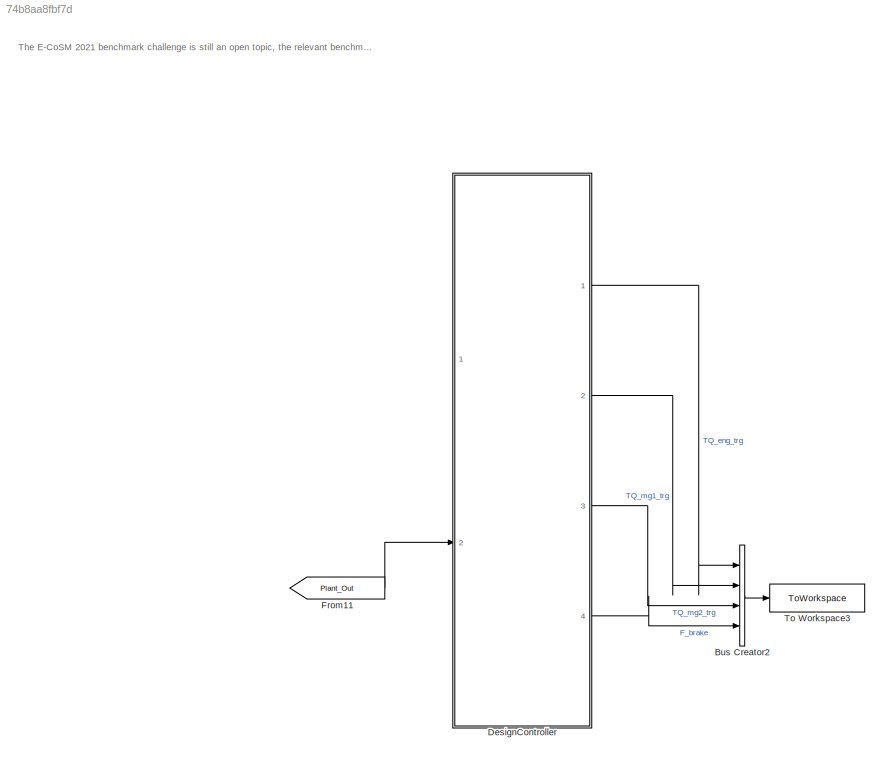
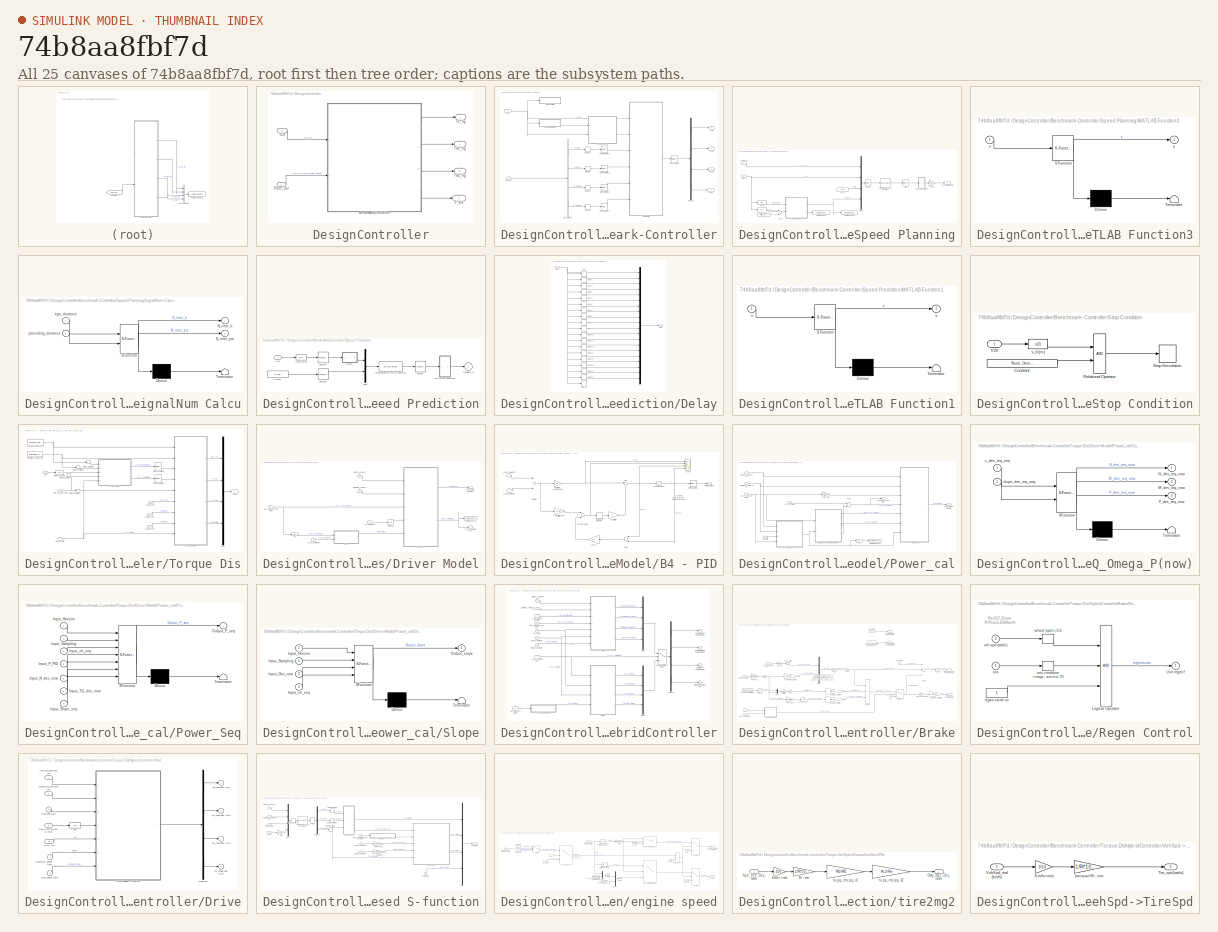
[diagram: thumbnail index - all 25 canvases of the model, root first then tree order]
MODEL slx_74b8aa8fbf7d
KIND model
CONFIG AbsTol = auto
CONFIG EnableMultiTasking = off
CONFIG FixedStep = simTs
CONFIG MaxStep = auto
CONFIG MinStep = auto
CONFIG RelTol = 1e-3
CONFIG SampleTimeConstraint = Unconstrained
CONFIG Solver = ode1
CONFIG SolverName = ode1
CONFIG StartTime = 0
CONFIG StopTime = t_end
BLOCK [BusCreator] Bus Creator2
  DisplayOption = bar
  InheritFromInputs = on
  Inputs = 4
  Ports = [4, 1]
BLOCK [SubSystem] DesignController
  Ports = [2, 4]
  RequestExecContextInheritance = off
BLOCK [SubSystem] DesignController/Benchmark-Controller
  Ports = [2, 4]
  RequestExecContextInheritance = off
BLOCK [BusSelector] DesignController/Benchmark-Controller/Bus Selector
  OutputAsBus = off
  OutputSignals = SOC[%],Vel[km/h],N_mg2[rpm],N_mg1[rpm]
  Ports = [1, 4]
BLOCK [Demux] DesignController/Benchmark-Controller/Demux1
  DisplayOption = bar
  Ports = [1, 4]
BLOCK [Outport] DesignController/Benchmark-Controller/F_brk
  IconDisplay = Port number
  Port = 4
BLOCK [Memory] DesignController/Benchmark-Controller/Memory
  InitialCondition = Initial_vhcl_spd
BLOCK [Memory] DesignController/Benchmark-Controller/Memory1
  InitialCondition = Initial_SOC
BLOCK [Memory] DesignController/Benchmark-Controller/Memory3
  InitialCondition = Initial_MG1_spd
BLOCK [Memory] DesignController/Benchmark-Controller/Memory4
  InitialCondition = Initial_MG2_spd
BLOCK [Inport] DesignController/Benchmark-Controller/Plant_Out
  IconDisplay = Port number
  Port = 2
BLOCK [RateTransition] DesignController/Benchmark-Controller/Rate Transition1
  OutPortSampleTime = 0.01
BLOCK [RateTransition] DesignController/Benchmark-Controller/Rate Transition3
  InitialCondition = 50
  OutPortSampleTime = 0.05
BLOCK [RateTransition] DesignController/Benchmark-Controller/Rate Transition4
  OutPortSampleTime = 0.05
BLOCK [RateTransition] DesignController/Benchmark-Controller/Rate Transition6
  OutPortSampleTime = 0.05
BLOCK [RateTransition] DesignController/Benchmark-Controller/Rate Transition7
  OutPortSampleTime = 0.05
BLOCK [SubSystem] DesignController/Benchmark-Controller/Speed Planning
  Ports = [2, 1]
  RequestExecContextInheritance = off
BLOCK [Constant] DesignController/Benchmark-Controller/Speed Planning/ 1
  Value = Initial_headway
BLOCK [Sum] DesignController/Benchmark-Controller/Speed Planning/Add4
  InputSameDT = off
  OutDataTypeStr = Inherit: Inherit via internal rule
  Ports = [2, 1]
  SaturateOnIntegerOverflow = off
BLOCK [Clock] DesignController/Benchmark-Controller/Speed Planning/Clock1
  DisplayTime = on
BLOCK [Fcn] DesignController/Benchmark-Controller/Speed Planning/Fcn2
  Expr = u(2)
BLOCK [Fcn] DesignController/Benchmark-Controller/Speed Planning/Fcn6
  Expr = u(7)
BLOCK [Gain] DesignController/Benchmark-Controller/Speed Planning/Gain1
  Gain = 3.6
  OutDataTypeStr = Inherit: Inherit via internal rule
  ParamDataTypeStr = Inherit: Inherit via internal rule
  SaturateOnIntegerOverflow = off
BLOCK [MATLABFcn] DesignController/Benchmark-Controller/Speed Planning/Interpreted MATLAB Function2
  MATLABFcn = UpperLayerVPlan
  Output1D = off
  Ports = [1, 1]
BLOCK [SubSystem] DesignController/Benchmark-Controller/Speed Planning/MATLAB Function3
  ErrorFcn = Stateflow.Translate.translate
  PermitHierarchicalResolution = ExplicitOnly
  Ports = [1, 1]
  RequestExecContextInheritance = off
  SFBlockType = MATLAB Function
  TreatAsAtomicUnit = on
BLOCK [Demux] DesignController/Benchmark-Controller/Speed Planning/MATLAB Function3/ Demux 
  Outputs = 1
  Ports = [1, 1]
BLOCK [S-Function] DesignController/Benchmark-Controller/Speed Planning/MATLAB Function3/ SFunction 
  EnableBusSupport = on
  FunctionName = sf_sfun
  PortCounts = [1 2]
  Ports = [1, 2]
  SFcnIsStateOwnerBlock = off
  SFunctionDeploymentMode = off
  Tag = Stateflow S-Function Benchmark2021ControllerNew 9
BLOCK [Terminator] DesignController/Benchmark-Controller/Speed Planning/MATLAB Function3/ Terminator 
BLOCK [Inport] DesignController/Benchmark-Controller/Speed Planning/MATLAB Function3/u
  IconDisplay = Port number
BLOCK [Outport] DesignController/Benchmark-Controller/Speed Planning/MATLAB Function3/y
  IconDisplay = Port number
BLOCK [Mux] DesignController/Benchmark-Controller/Speed Planning/Mux2
  DisplayOption = bar
  Ports = [4, 1]
BLOCK [SubSystem] DesignController/Benchmark-Controller/Speed Planning/SignalNum Calcu
  ErrorFcn = Stateflow.Translate.translate
  PermitHierarchicalResolution = ExplicitOnly
  Ports = [2, 2]
  RequestExecContextInheritance = off
  SFBlockType = MATLAB Function
  TreatAsAtomicUnit = on
BLOCK [Demux] DesignController/Benchmark-Controller/Speed Planning/SignalNum Calcu/ Demux 
  Outputs = 1
  Ports = [1, 1]
BLOCK [S-Function] DesignController/Benchmark-Controller/Speed Planning/SignalNum Calcu/ SFunction 
  EnableBusSupport = on
  FunctionName = sf_sfun
  PortCounts = [2 3]
  Ports = [2, 3]
  SFcnIsStateOwnerBlock = off
  SFunctionDeploymentMode = off
  Tag = Stateflow S-Function Benchmark2021ControllerNew 14
BLOCK [Terminator] DesignController/Benchmark-Controller/Speed Planning/SignalNum Calcu/ Terminator 
BLOCK [Outport] DesignController/Benchmark-Controller/Speed Planning/SignalNum Calcu/N_inter_h
  IconDisplay = Port number
BLOCK [Outport] DesignController/Benchmark-Controller/Speed Planning/SignalNum Calcu/N_inter_pre
  IconDisplay = Port number
  Port = 2
BLOCK [Inport] DesignController/Benchmark-Controller/Speed Planning/SignalNum Calcu/ego_distance
  IconDisplay = Port number
BLOCK [Inport] DesignController/Benchmark-Controller/Speed Planning/SignalNum Calcu/preceding_distance
  IconDisplay = Port number
  Port = 2
BLOCK [ToWorkspace] DesignController/Benchmark-Controller/Speed Planning/To Workspace1
  FixptAsFi = on
  MaxDataPoints = inf
  Ports = [1]
  SampleTime = -1
  Save2DSignal = 2-D array (concatenate along first dimension)
  VariableName = Result_N_inter_pre
BLOCK [ToWorkspace] DesignController/Benchmark-Controller/Speed Planning/To Workspace2
  FixptAsFi = on
  MaxDataPoints = inf
  Ports = [1]
  SampleTime = -1
  Save2DSignal = 2-D array (concatenate along first dimension)
  VariableName = Result_N_inter_h
BLOCK [Inport] DesignController/Benchmark-Controller/Speed Planning/V2X
  IconDisplay = Port number
  Port = 2
BLOCK [RateTransition] DesignController/Benchmark-Controller/Speed Planning/after2
  OutPortSampleTime = simTs
BLOCK [RateTransition] DesignController/Benchmark-Controller/Speed Planning/before1
  OutPortSampleTime = Ts_upper
BLOCK [Outport] DesignController/Benchmark-Controller/Speed Planning/v_des_future [km//h]
  IconDisplay = Port number
BLOCK [Inport] DesignController/Benchmark-Controller/Speed Planning/v_predic_p
  IconDisplay = Port number
BLOCK [SubSystem] DesignController/Benchmark-Controller/Speed Prediction
  Ports = [1, 1]
  RequestExecContextInheritance = off
  SystemSampleTime = 0.05
BLOCK [Clock] DesignController/Benchmark-Controller/Speed Prediction/Clock1
  DisplayTime = on
BLOCK [SubSystem] DesignController/Benchmark-Controller/Speed Prediction/Delay
  Ports = [1, 1]
  RequestExecContextInheritance = off
BLOCK [Delay] DesignController/Benchmark-Controller/Speed Prediction/Delay/Delay
  DelayLength = 1
  InputPortMap = u0
  Ports = [1, 1]
BLOCK [Delay] DesignController/Benchmark-Controller/Speed Prediction/Delay/Delay1
  InputPortMap = u0
  Ports = [1, 1]
BLOCK [Delay] DesignController/Benchmark-Controller/Speed Prediction/Delay/Delay10
  DelayLength = 11
  InputPortMap = u0
  Ports = [1, 1]
BLOCK [Delay] DesignController/Benchmark-Controller/Speed Prediction/Delay/Delay11
  DelayLength = 12
  InputPortMap = u0
  Ports = [1, 1]
BLOCK [Delay] DesignController/Benchmark-Controller/Speed Prediction/Delay/Delay12
  DelayLength = 13
  InputPortMap = u0
  Ports = [1, 1]
BLOCK [Delay] DesignController/Benchmark-Controller/Speed Prediction/Delay/Delay13
  DelayLength = 14
  InputPortMap = u0
  Ports = [1, 1]
BLOCK [Delay] DesignController/Benchmark-Controller/Speed Prediction/Delay/Delay14
  DelayLength = 15
  InputPortMap = u0
  Ports = [1, 1]
BLOCK [Delay] DesignController/Benchmark-Controller/Speed Prediction/Delay/Delay15
  DelayLength = 16
  InputPortMap = u0
  Ports = [1, 1]
BLOCK [Delay] DesignController/Benchmark-Controller/Speed Prediction/Delay/Delay16
  DelayLength = 17
  InputPortMap = u0
  Ports = [1, 1]
BLOCK [Delay] DesignController/Benchmark-Controller/Speed Prediction/Delay/Delay17
  DelayLength = 18
  InputPortMap = u0
  Ports = [1, 1]
BLOCK [Delay] DesignController/Benchmark-Controller/Speed Prediction/Delay/Delay18
  DelayLength = 19
  InputPortMap = u0
  Ports = [1, 1]
BLOCK [Delay] DesignController/Benchmark-Controller/Speed Prediction/Delay/Delay2
  DelayLength = 3
  InputPortMap = u0
  Ports = [1, 1]
BLOCK [Delay] DesignController/Benchmark-Controller/Speed Prediction/Delay/Delay3
  DelayLength = 4
  InputPortMap = u0
  Ports = [1, 1]
BLOCK [Delay] DesignController/Benchmark-Controller/Speed Prediction/Delay/Delay4
  DelayLength = 5
  InputPortMap = u0
  Ports = [1, 1]
BLOCK [Delay] DesignController/Benchmark-Controller/Speed Prediction/Delay/Delay5
  DelayLength = 6
  InputPortMap = u0
  Ports = [1, 1]
BLOCK [Delay] DesignController/Benchmark-Controller/Speed Prediction/Delay/Delay6
  DelayLength = 7
  InputPortMap = u0
  Ports = [1, 1]
BLOCK [Delay] DesignController/Benchmark-Controller/Speed Prediction/Delay/Delay7
  DelayLength = 8
  InputPortMap = u0
  Ports = [1, 1]
BLOCK [Delay] DesignController/Benchmark-Controller/Speed Prediction/Delay/Delay8
  DelayLength = 9
  InputPortMap = u0
  Ports = [1, 1]
BLOCK [Delay] DesignController/Benchmark-Controller/Speed Prediction/Delay/Delay9
  DelayLength = 10
  InputPortMap = u0
  Ports = [1, 1]
BLOCK [Inport] DesignController/Benchmark-Controller/Speed Prediction/Delay/In1
  IconDisplay = Port number
BLOCK [Mux] DesignController/Benchmark-Controller/Speed Prediction/Delay/Mux
  DisplayOption = bar
  Inputs = 20
  Ports = [20, 1]
BLOCK [Outport] DesignController/Benchmark-Controller/Speed Prediction/Delay/Out1
  IconDisplay = Port number
BLOCK [MATLABFcn] DesignController/Benchmark-Controller/Speed Prediction/Interpreted MATLAB Function
  MATLABFcn = UpperLayerVpredict(u(1:20),u(21))
  Ports = [1, 1]
BLOCK [SubSystem] DesignController/Benchmark-Controller/Speed Prediction/MATLAB Function1
  ErrorFcn = Stateflow.Translate.translate
  PermitHierarchicalResolution = ExplicitOnly
  Ports = [1, 1]
  RequestExecContextInheritance = off
  SFBlockType = MATLAB Function
  TreatAsAtomicUnit = on
BLOCK [Demux] DesignController/Benchmark-Controller/Speed Prediction/MATLAB Function1/ Demux 
  Outputs = 1
  Ports = [1, 1]
BLOCK [S-Function] DesignController/Benchmark-Controller/Speed Prediction/MATLAB Function1/ SFunction 
  EnableBusSupport = on
  FunctionName = sf_sfun
  PortCounts = [1 2]
  Ports = [1, 2]
  SFcnIsStateOwnerBlock = off
  SFunctionDeploymentMode = off
  Tag = Stateflow S-Function Benchmark2021ControllerNew 19
BLOCK [Terminator] DesignController/Benchmark-Controller/Speed Prediction/MATLAB Function1/ Terminator 
BLOCK [Inport] DesignController/Benchmark-Controller/Speed Prediction/MATLAB Function1/u
  IconDisplay = Port number
BLOCK [Outport] DesignController/Benchmark-Controller/Speed Prediction/MATLAB Function1/y
  IconDisplay = Port number
BLOCK [Mux] DesignController/Benchmark-Controller/Speed Prediction/Mux
  DisplayOption = bar
  Inputs = 2
  Ports = [2, 1]
BLOCK [Inport] DesignController/Benchmark-Controller/Speed Prediction/V2X
  IconDisplay = Port number
BLOCK [RateTransition] DesignController/Benchmark-Controller/Speed Prediction/after1
  OutPortSampleTime = simTs
BLOCK [RateTransition] DesignController/Benchmark-Controller/Speed Prediction/before3
  OutPortSampleTime = Ts_predict
BLOCK [RateTransition] DesignController/Benchmark-Controller/Speed Prediction/before4
  OutPortSampleTime = Ts_predict
BLOCK [Fcn] DesignController/Benchmark-Controller/Speed Prediction/v_pre [m//s]
  Expr = u(6)
BLOCK [Outport] DesignController/Benchmark-Controller/Speed Prediction/v_predict_p
  IconDisplay = Port number
BLOCK [SubSystem] DesignController/Benchmark-Controller/Stop Condition
  Ports = [1]
  RequestExecContextInheritance = off
BLOCK [Constant] DesignController/Benchmark-Controller/Stop Condition/Constant
  Value = Route_Destination_Distance
BLOCK [RelationalOperator] DesignController/Benchmark-Controller/Stop Condition/Relational Operator
  InputSameDT = off
  OutDataTypeStr = boolean
  Ports = [2, 1]
  RndMeth = Simplest
BLOCK [Stop] DesignController/Benchmark-Controller/Stop Condition/Stop Simulation
BLOCK [Inport] DesignController/Benchmark-Controller/Stop Condition/V2X
  IconDisplay = Port number
BLOCK [Fcn] DesignController/Benchmark-Controller/Stop Condition/s_h [m]
  Expr = u(2)
BLOCK [Outport] DesignController/Benchmark-Controller/Te_trg
  IconDisplay = Port number
BLOCK [Outport] DesignController/Benchmark-Controller/Tm1_trg
  IconDisplay = Port number
  Port = 2
BLOCK [Outport] DesignController/Benchmark-Controller/Tm2_trg
  IconDisplay = Port number
  Port = 3
BLOCK [SubSystem] DesignController/Benchmark-Controller/Torque Dis
  Ports = [6, 1]
  RequestExecContextInheritance = off
  SystemSampleTime = 0.05
BLOCK [Inport] DesignController/Benchmark-Controller/Torque Dis/Des_Vel_Seq(Km//h)
  IconDisplay = Port number
  Port = 2
BLOCK [SubSystem] DesignController/Benchmark-Controller/Torque Dis/Driver Model
  Ports = [5, 2]
  RequestExecContextInheritance = off
BLOCK [SubSystem] DesignController/Benchmark-Controller/Torque Dis/Driver Model/B4 - PID
  Ports = [2, 1]
  RequestExecContextInheritance = off
BLOCK [Saturate] DesignController/Benchmark-Controller/Torque Dis/Driver Model/B4 - PID/-100kw to 100kw 
  InputPortMap = u0
  LowerLimit = -100
  Ports = [1, 1]
  UpperLimit = 20
BLOCK [Gain] DesignController/Benchmark-Controller/Torque Dis/Driver Model/B4 - PID/1//Tt_c1
  Gain = 0.8
BLOCK [DiscreteIntegrator] DesignController/Benchmark-Controller/Torque Dis/Driver Model/B4 - PID/Discrete-Time Integrator
  ICPrevOutput = DiscIntNeverNeededParam
  ICPrevScaledInput = DiscIntNeverNeededParam
  InitialConditionSetting = Auto
  Ports = [1, 1]
  SampleTime = 0.05
BLOCK [Sum] DesignController/Benchmark-Controller/Torque Dis/Driver Model/B4 - PID/Ki1+ki2=SumKi
  Ports = [2, 1]
BLOCK [RateTransition] DesignController/Benchmark-Controller/Torque Dis/Driver Model/B4 - PID/Rate Transition3
  OutPortSampleTime = 0.05
BLOCK [Scope] DesignController/Benchmark-Controller/Torque Dis/Driver Model/B4 - PID/Scope
  Floating = off
  NumInputPorts = 4
  Ports = [4]
  ScopeSpecificationString = Simulink.scopes.TimeScopeBlockCfg('CurrentConfiguration', extmgr.ConfigurationSet(extmgr.Configuration('Core','General UI',true,'FigureColor',[1 1 1]),extmgr.Configuration('Core','Source UI',true),extmgr.Configuration('Sources','WiredSimulink',true,'DataLoggingVariableName','ScopeData1','SampleTime','0.05'),extmgr.Configuration('Visuals','Time Domain',true,'SerializedDisplays',{struct('MinYLimReal...<+7555ch>
BLOCK [Sum] DesignController/Benchmark-Controller/Torque Dis/Driver Model/B4 - PID/Subtract
  InputSameDT = off
  Inputs = +-
  OutDataTypeStr = Inherit: Inherit via internal rule
  Ports = [2, 1]
  SaturateOnIntegerOverflow = off
BLOCK [Sum] DesignController/Benchmark-Controller/Torque Dis/Driver Model/B4 - PID/Sum
  IconShape = round
  Inputs = |++
  Ports = [2, 1]
BLOCK [Sum] DesignController/Benchmark-Controller/Torque Dis/Driver Model/B4 - PID/Sum5
  Inputs = -+
  Ports = [2, 1]
BLOCK [Outport] DesignController/Benchmark-Controller/Torque Dis/Driver Model/B4 - PID/delta Power [kw]
  IconDisplay = Port number
BLOCK [Gain] DesignController/Benchmark-Controller/Torque Dis/Driver Model/B4 - PID/drv.ctrl.init.ki
BLOCK [Gain] DesignController/Benchmark-Controller/Torque Dis/Driver Model/B4 - PID/drv.ctrl.init.ki_WYH
  Gain = 0.65
BLOCK [Gain] DesignController/Benchmark-Controller/Torque Dis/Driver Model/B4 - PID/drv.ctrl.init.kp_0615canshu
  Gain = 5
BLOCK [Inport] DesignController/Benchmark-Controller/Torque Dis/Driver Model/B4 - PID/v_des_now [km//h]
  IconDisplay = Port number
BLOCK [Inport] DesignController/Benchmark-Controller/Torque Dis/Driver Model/B4 - PID/v_real_now [km//h]
  IconDisplay = Port number
  Port = 2
BLOCK [Inport] DesignController/Benchmark-Controller/Torque Dis/Driver Model/Des_VehSpd_Seq [Km//h]
  IconDisplay = Port number
  Port = 4
BLOCK [Fcn] DesignController/Benchmark-Controller/Torque Dis/Driver Model/Fcn
  Expr = u(1)
BLOCK [Inport] DesignController/Benchmark-Controller/Torque Dis/Driver Model/Horizon_Lowlayer [s]
  IconDisplay = Port number
  SampleTime = 0.05
BLOCK [Outport] DesignController/Benchmark-Controller/Torque Dis/Driver Model/P_des_now (PID) [kw]
  IconDisplay = Port number
  Port = 2
BLOCK [Outport] DesignController/Benchmark-Controller/Torque Dis/Driver Model/P_req_predict (Seq) [kw]
  IconDisplay = Port number
BLOCK [SubSystem] DesignController/Benchmark-Controller/Torque Dis/Driver Model/Power_cal
  Ports = [5, 2]
  RequestExecContextInheritance = off
BLOCK [SubSystem] DesignController/Benchmark-Controller/Torque Dis/Driver Model/Power_cal/Cal_des_TQ_Omega_P(now)
  ErrorFcn = Stateflow.Translate.translate
  PermitHierarchicalResolution = ExplicitOnly
  Ports = [2, 3]
  RequestExecContextInheritance = off
  SFBlockType = MATLAB Function
  TreatAsAtomicUnit = on
BLOCK [Demux] DesignController/Benchmark-Controller/Torque Dis/Driver Model/Power_cal/Cal_des_TQ_Omega_P(now)/ Demux 
  Outputs = 1
  Ports = [1, 1]
BLOCK [S-Function] DesignController/Benchmark-Controller/Torque Dis/Driver Model/Power_cal/Cal_des_TQ_Omega_P(now)/ SFunction 
  EnableBusSupport = on
  FunctionName = sf_sfun
  Parameters = Horizon_Lowlayer,N_PMP_Lowlayer,Sampling_Lowlayer
  PortCounts = [2 4]
  Ports = [2, 4]
  SFcnIsStateOwnerBlock = off
  SFunctionDeploymentMode = off
  Tag = Stateflow S-Function Benchmark2021ControllerNew 13
BLOCK [Terminator] DesignController/Benchmark-Controller/Torque Dis/Driver Model/Power_cal/Cal_des_TQ_Omega_P(now)/ Terminator 
BLOCK [Outport] DesignController/Benchmark-Controller/Torque Dis/Driver Model/Power_cal/Cal_des_TQ_Omega_P(now)/M_des_req_now
  IconDisplay = Port number
  Port = 2
BLOCK [Outport] DesignController/Benchmark-Controller/Torque Dis/Driver Model/Power_cal/Cal_des_TQ_Omega_P(now)/N_des_req_now
  IconDisplay = Port number
BLOCK [Outport] DesignController/Benchmark-Controller/Torque Dis/Driver Model/Power_cal/Cal_des_TQ_Omega_P(now)/P_des_req_now
  IconDisplay = Port number
  Port = 3
BLOCK [Inport] DesignController/Benchmark-Controller/Torque Dis/Driver Model/Power_cal/Cal_des_TQ_Omega_P(now)/slope_des_req_seq
  IconDisplay = Port number
  Port = 2
BLOCK [Inport] DesignController/Benchmark-Controller/Torque Dis/Driver Model/Power_cal/Cal_des_TQ_Omega_P(now)/v_des_req_seq
  IconDisplay = Port number
BLOCK [Inport] DesignController/Benchmark-Controller/Torque Dis/Driver Model/Power_cal/Dist_init [m]
  IconDisplay = Port number
  Port = 4
  SampleTime = 0.05
BLOCK [Fcn] DesignController/Benchmark-Controller/Torque Dis/Driver Model/Power_cal/Fcn
  Expr = u(1)
BLOCK [Inport] DesignController/Benchmark-Controller/Torque Dis/Driver Model/Power_cal/Horizon_Lowlayer [s]
  IconDisplay = Port number
  SampleTime = 0.05
BLOCK [Inport] DesignController/Benchmark-Controller/Torque Dis/Driver Model/Power_cal/P_only_PID [kw]
  IconDisplay = Port number
  Port = 5
  SampleTime = 0.05
BLOCK [Outport] DesignController/Benchmark-Controller/Torque Dis/Driver Model/Power_cal/P_req_predict (Seq) [kw]
  IconDisplay = Port number
BLOCK [SubSystem] DesignController/Benchmark-Controller/Torque Dis/Driver Model/Power_cal/Power_Seq
  ErrorFcn = Stateflow.Translate.translate
  PermitHierarchicalResolution = ExplicitOnly
  Ports = [7, 1]
  RequestExecContextInheritance = off
  SFBlockType = MATLAB Function
  TreatAsAtomicUnit = on
BLOCK [Demux] DesignController/Benchmark-Controller/Torque Dis/Driver Model/Power_cal/Power_Seq/ Demux 
  Outputs = 1
  Ports = [1, 1]
BLOCK [S-Function] DesignController/Benchmark-Controller/Torque Dis/Driver Model/Power_cal/Power_Seq/ SFunction 
  EnableBusSupport = on
  FunctionName = sf_sfun
  PortCounts = [7 2]
  Ports = [7, 2]
  SFcnIsStateOwnerBlock = off
  SFunctionDeploymentMode = off
  Tag = Stateflow S-Function Benchmark2021ControllerNew 15
BLOCK [Terminator] DesignController/Benchmark-Controller/Torque Dis/Driver Model/Power_cal/Power_Seq/ Terminator 
BLOCK [Inport] DesignController/Benchmark-Controller/Torque Dis/Driver Model/Power_cal/Power_Seq/Input_Horizon
  IconDisplay = Port number
BLOCK [Inport] DesignController/Benchmark-Controller/Torque Dis/Driver Model/Power_cal/Power_Seq/Input_N_des_now
  IconDisplay = Port number
  Port = 5
BLOCK [Inport] DesignController/Benchmark-Controller/Torque Dis/Driver Model/Power_cal/Power_Seq/Input_P_PID
  IconDisplay = Port number
  Port = 4
BLOCK [Inport] DesignController/Benchmark-Controller/Torque Dis/Driver Model/Power_cal/Power_Seq/Input_Sampling
  IconDisplay = Port number
  Port = 2
BLOCK [Inport] DesignController/Benchmark-Controller/Torque Dis/Driver Model/Power_cal/Power_Seq/Input_Slope_seq
  IconDisplay = Port number
  Port = 7
BLOCK [Inport] DesignController/Benchmark-Controller/Torque Dis/Driver Model/Power_cal/Power_Seq/Input_TQ_des_now
  IconDisplay = Port number
  Port = 6
BLOCK [Inport] DesignController/Benchmark-Controller/Torque Dis/Driver Model/Power_cal/Power_Seq/Input_vh_seq
  IconDisplay = Port number
  Port = 3
BLOCK [Outport] DesignController/Benchmark-Controller/Torque Dis/Driver Model/Power_cal/Power_Seq/Output_P_seq
  IconDisplay = Port number
BLOCK [Outport] DesignController/Benchmark-Controller/Torque Dis/Driver Model/Power_cal/Power_des_now [kw]
  IconDisplay = Port number
  Port = 2
BLOCK [Inport] DesignController/Benchmark-Controller/Torque Dis/Driver Model/Power_cal/Sampling_Lowlayer [s]
  IconDisplay = Port number
  Port = 2
  SampleTime = 0.05
BLOCK [Inport] DesignController/Benchmark-Controller/Torque Dis/Driver Model/Power_cal/Seq_v_des_req [km//h]
  IconDisplay = Port number
  Port = 3
  SampleTime = 0.05
BLOCK [SubSystem] DesignController/Benchmark-Controller/Torque Dis/Driver Model/Power_cal/Slope
  ErrorFcn = Stateflow.Translate.translate
  PermitHierarchicalResolution = ExplicitOnly
  Ports = [4, 1]
  RequestExecContextInheritance = off
  SFBlockType = MATLAB Function
  TreatAsAtomicUnit = on
BLOCK [Demux] DesignController/Benchmark-Controller/Torque Dis/Driver Model/Power_cal/Slope/ Demux 
  Outputs = 1
  Ports = [1, 1]
BLOCK [S-Function] DesignController/Benchmark-Controller/Torque Dis/Driver Model/Power_cal/Slope/ SFunction 
  EnableBusSupport = on
  FunctionName = sf_sfun
  PortCounts = [4 2]
  Ports = [4, 2]
  SFcnIsStateOwnerBlock = off
  SFunctionDeploymentMode = off
  Tag = Stateflow S-Function Benchmark2021ControllerNew 16
BLOCK [Terminator] DesignController/Benchmark-Controller/Torque Dis/Driver Model/Power_cal/Slope/ Terminator 
BLOCK [Inport] DesignController/Benchmark-Controller/Torque Dis/Driver Model/Power_cal/Slope/Input_Dist_now
  IconDisplay = Port number
  Port = 3
BLOCK [Inport] DesignController/Benchmark-Controller/Torque Dis/Driver Model/Power_cal/Slope/Input_Horizon
  IconDisplay = Port number
BLOCK [Inport] DesignController/Benchmark-Controller/Torque Dis/Driver Model/Power_cal/Slope/Input_Sampling
  IconDisplay = Port number
  Port = 2
BLOCK [Inport] DesignController/Benchmark-Controller/Torque Dis/Driver Model/Power_cal/Slope/Input_vh_seq
  IconDisplay = Port number
  Port = 4
BLOCK [Outport] DesignController/Benchmark-Controller/Torque Dis/Driver Model/Power_cal/Slope/Output_slope
  IconDisplay = Port number
BLOCK [Sum] DesignController/Benchmark-Controller/Torque Dis/Driver Model/Power_cal/Sum1
  Ports = [2, 1]
BLOCK [ToWorkspace] DesignController/Benchmark-Controller/Torque Dis/Driver Model/Power_cal/To Workspace21
  MaxDataPoints = inf
  Ports = [1]
  SampleTime = 0.05
  VariableName = Data_slope
BLOCK [Gain] DesignController/Benchmark-Controller/Torque Dis/Driver Model/Power_cal/km//h >> m//s
  Gain = 1/3.6
  OutDataTypeStr = Inherit: Inherit via internal rule
  ParamDataTypeStr = Inherit: Inherit via internal rule
  SaturateOnIntegerOverflow = off
BLOCK [Inport] DesignController/Benchmark-Controller/Torque Dis/Driver Model/Sampling_Lowlayer [s]
  IconDisplay = Port number
  Port = 2
  SampleTime = 0.05
BLOCK [ToWorkspace] DesignController/Benchmark-Controller/Torque Dis/Driver Model/To Workspace21
  MaxDataPoints = inf
  Ports = [1]
  SampleTime = 0.05
  VariableName = Data_Pdes_now
BLOCK [UnitDelay] DesignController/Benchmark-Controller/Torque Dis/Driver Model/Unit Delay
  InputProcessing = Elements as channels (sample based)
  SampleTime = 0.05
BLOCK [Inport] DesignController/Benchmark-Controller/Torque Dis/Driver Model/v2x->dist&slope
  IconDisplay = Port number
  Port = 3
BLOCK [Inport] DesignController/Benchmark-Controller/Torque Dis/Driver Model/v_spd_now [km//h]
  IconDisplay = Port number
  Port = 5
BLOCK [Constant] DesignController/Benchmark-Controller/Torque Dis/Horizon_Lowlayer [s]
  Value = Horizon_Lowlayer
BLOCK [SubSystem] DesignController/Benchmark-Controller/Torque Dis/HybridController
  Ports = [9, 4]
  RequestExecContextInheritance = off
  ShowPortLabels = none
  SystemSampleTime = 0.05
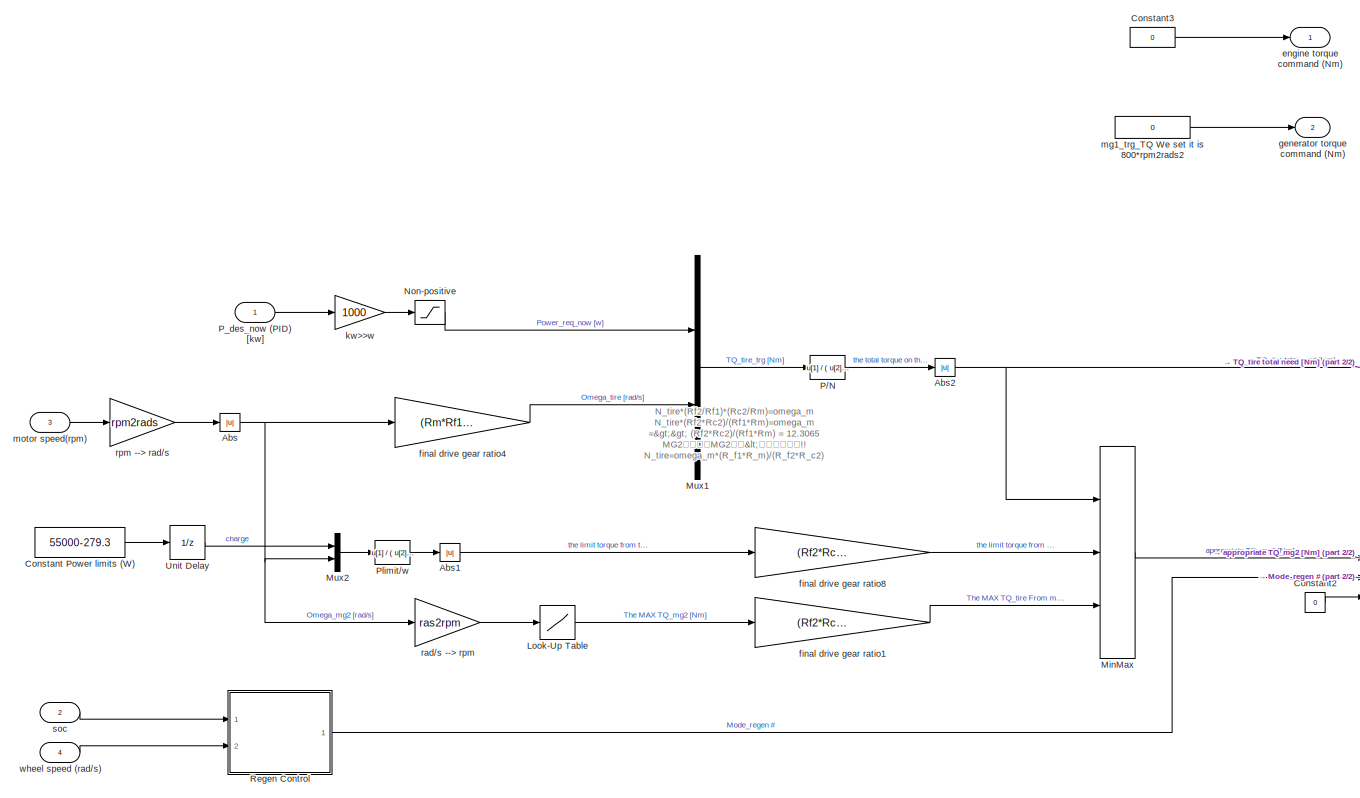
[diagram: DesignController/Benchmark-Controller/Torque Dis/HybridController/Brake - part 1/2, center side, full height]
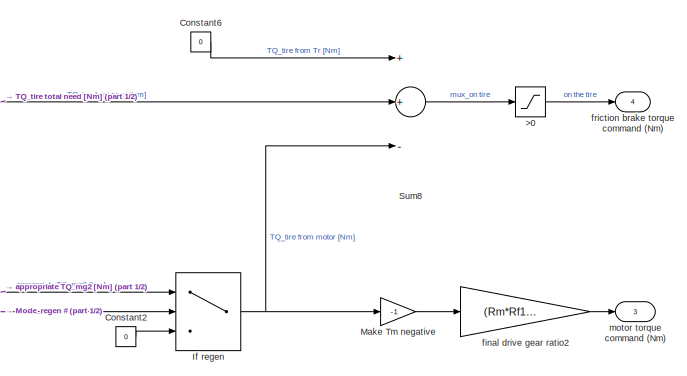
[diagram: DesignController/Benchmark-Controller/Torque Dis/HybridController/Brake - part 2/2, middle right region]
BLOCK [SubSystem] DesignController/Benchmark-Controller/Torque Dis/HybridController/Brake
  AncestorBlock = lib_controls/<vc> prius/Coordinated\n Controller/max engine\nefficiency point
  Ports = [4, 4]
  RequestExecContextInheritance = off
  ShowPortLabels = none
BLOCK [Gain] DesignController/Benchmark-Controller/Torque Dis/HybridController/Brake/ rad//s --> rpm
  Gain = ras2rpm
BLOCK [Saturate] DesignController/Benchmark-Controller/Torque Dis/HybridController/Brake/>0
  InputPortMap = u0
  LowerLimit = 0
  Ports = [1, 1]
  UpperLimit = 20000
BLOCK [Abs] DesignController/Benchmark-Controller/Torque Dis/HybridController/Brake/Abs
BLOCK [Abs] DesignController/Benchmark-Controller/Torque Dis/HybridController/Brake/Abs1
BLOCK [Abs] DesignController/Benchmark-Controller/Torque Dis/HybridController/Brake/Abs2
BLOCK [Constant] DesignController/Benchmark-Controller/Torque Dis/HybridController/Brake/Constant Power limits (W)
  Value = 55000-279.3
BLOCK [Constant] DesignController/Benchmark-Controller/Torque Dis/HybridController/Brake/Constant2
  Value = 0
BLOCK [Constant] DesignController/Benchmark-Controller/Torque Dis/HybridController/Brake/Constant3
  Value = 0
BLOCK [Constant] DesignController/Benchmark-Controller/Torque Dis/HybridController/Brake/Constant6
  Value = 0
BLOCK [Switch] DesignController/Benchmark-Controller/Torque Dis/HybridController/Brake/If regen
  Threshold = 0.5
BLOCK [Lookup] DesignController/Benchmark-Controller/Torque Dis/HybridController/Brake/Look-Up Table
  InputValues = MG2_MaxMintorque_Spd
  Table = MG2_MaxMintorque_MaxTrq
BLOCK [Gain] DesignController/Benchmark-Controller/Torque Dis/HybridController/Brake/Make Tm negative
  Gain = -1
BLOCK [MinMax] DesignController/Benchmark-Controller/Torque Dis/HybridController/Brake/MinMax
  Inputs = 3
  Ports = [3, 1]
BLOCK [Mux] DesignController/Benchmark-Controller/Torque Dis/HybridController/Brake/Mux1
  DisplayOption = bar
  Inputs = 2
  Ports = [2, 1]
BLOCK [Mux] DesignController/Benchmark-Controller/Torque Dis/HybridController/Brake/Mux2
  DisplayOption = bar
  Inputs = 2
  Ports = [2, 1]
BLOCK [Saturate] DesignController/Benchmark-Controller/Torque Dis/HybridController/Brake/Non-positive
  InputPortMap = u0
  LowerLimit = -inf
  Ports = [1, 1]
  UpperLimit = 0
BLOCK [Fcn] DesignController/Benchmark-Controller/Torque Dis/HybridController/Brake/P//N
  Expr = u[1] / ( u[2] + eps*(u[2] == 0) )
BLOCK [Inport] DesignController/Benchmark-Controller/Torque Dis/HybridController/Brake/P_des_now (PID) [kw]
  IconDisplay = Port number
BLOCK [Fcn] DesignController/Benchmark-Controller/Torque Dis/HybridController/Brake/Plimit//w
  Expr = u[1] / ( u[2] + eps*(u[2] == 0) )
BLOCK [SubSystem] DesignController/Benchmark-Controller/Torque Dis/HybridController/Brake/Regen Control
  Ports = [2, 1]
  RequestExecContextInheritance = off
BLOCK [Logic] DesignController/Benchmark-Controller/Torque Dis/HybridController/Brake/Regen Control/Logical Operator
  Inputs = 3
  Ports = [3, 1]
BLOCK [Outport] DesignController/Benchmark-Controller/Torque Dis/HybridController/Brake/Regen Control/Use regen? 
  IconDisplay = Port number
BLOCK [Constant] DesignController/Benchmark-Controller/Torque Dis/HybridController/Brake/Regen Control/regen swith on
BLOCK [Inport] DesignController/Benchmark-Controller/Torque Dis/HybridController/Brake/Regen Control/soc
  IconDisplay = Port number
BLOCK [Relay] DesignController/Benchmark-Controller/Torque Dis/HybridController/Brake/Regen Control/soc condition <=regstop_soc we set it is 70
  OffOutputValue = 1
  OffSwitchValue = 70
  OnOutputValue = 0
  OnSwitchValue = 70
BLOCK [Inport] DesignController/Benchmark-Controller/Torque Dis/HybridController/Brake/Regen Control/wh spd (rad//s)
  IconDisplay = Port number
  Port = 2
BLOCK [Relay] DesignController/Benchmark-Controller/Torque Dis/HybridController/Brake/Regen Control/wheel spd>= 0.4
  OffSwitchValue = 0.4
  OnSwitchValue = 0.4
BLOCK [Sum] DesignController/Benchmark-Controller/Torque Dis/HybridController/Brake/Sum8
  Inputs = ++-
  Ports = [3, 1]
BLOCK [UnitDelay] DesignController/Benchmark-Controller/Torque Dis/HybridController/Brake/Unit Delay
  InputProcessing = Elements as channels (sample based)
  SampleTime = 0.05
BLOCK [Outport] DesignController/Benchmark-Controller/Torque Dis/HybridController/Brake/engine torque command (Nm)
  IconDisplay = Port number
BLOCK [Gain] DesignController/Benchmark-Controller/Torque Dis/HybridController/Brake/final drive gear ratio1
  Gain = (Rf2*Rc2)/(Rf1*Rm)
BLOCK [Gain] DesignController/Benchmark-Controller/Torque Dis/HybridController/Brake/final drive gear ratio2
  Gain = (Rm*Rf1)/(Rc2*Rf2)
BLOCK [Gain] DesignController/Benchmark-Controller/Torque Dis/HybridController/Brake/final drive gear ratio4
  Gain = (Rm*Rf1)/(Rc2*Rf2)
BLOCK [Gain] DesignController/Benchmark-Controller/Torque Dis/HybridController/Brake/final drive gear ratio8
  Gain = (Rf2*Rc2)/(Rf1*Rm)
BLOCK [Outport] DesignController/Benchmark-Controller/Torque Dis/HybridController/Brake/friction brake torque command (Nm)
  IconDisplay = Port number
  Port = 4
BLOCK [Outport] DesignController/Benchmark-Controller/Torque Dis/HybridController/Brake/generator torque command (Nm)
  IconDisplay = Port number
  Port = 2
BLOCK [Gain] DesignController/Benchmark-Controller/Torque Dis/HybridController/Brake/kw>>w
  Gain = 1000
BLOCK [Constant] DesignController/Benchmark-Controller/Torque Dis/HybridController/Brake/mg1_trg_TQ We set it is 800*rpm2rads2
  Value = 0
BLOCK [Inport] DesignController/Benchmark-Controller/Torque Dis/HybridController/Brake/motor speed(rpm)
  IconDisplay = Port number
  Port = 3
BLOCK [Outport] DesignController/Benchmark-Controller/Torque Dis/HybridController/Brake/motor torque command (Nm)
  IconDisplay = Port number
  Port = 3
BLOCK [Gain] DesignController/Benchmark-Controller/Torque Dis/HybridController/Brake/rpm --> rad//s
  Gain = rpm2rads
BLOCK [Inport] DesignController/Benchmark-Controller/Torque Dis/HybridController/Brake/soc
  IconDisplay = Port number
  Port = 2
BLOCK [Inport] DesignController/Benchmark-Controller/Torque Dis/HybridController/Brake/wheel speed (rad//s)
  IconDisplay = Port number
  Port = 4
BLOCK [Demux] DesignController/Benchmark-Controller/Torque Dis/HybridController/Demux1
  Ports = [1, 4]
BLOCK [Inport] DesignController/Benchmark-Controller/Torque Dis/HybridController/Des_VehSpd_Seq [Km//h]
  IconDisplay = Port number
  Port = 5
BLOCK [SubSystem] DesignController/Benchmark-Controller/Torque Dis/HybridController/Drive
  AncestorBlock = lib_controls/<vc> prius/Coordinated\n Controller/max engine\nefficiency point
  Ports = [7, 4]
  RequestExecContextInheritance = off
  ShowPortLabels = none
BLOCK [Demux] DesignController/Benchmark-Controller/Torque Dis/HybridController/Drive/Demux1
  Ports = [1, 4]
BLOCK [Inport] DesignController/Benchmark-Controller/Torque Dis/HybridController/Drive/Des_VehSpd_Seq [Km//h]
  IconDisplay = Port number
  Port = 4
BLOCK [Fcn] DesignController/Benchmark-Controller/Torque Dis/HybridController/Drive/Fcn
  Expr = u(1)
BLOCK [Inport] DesignController/Benchmark-Controller/Torque Dis/HybridController/Drive/Generator speed (rpm)
  IconDisplay = Port number
  Port = 7
BLOCK [Inport] DesignController/Benchmark-Controller/Torque Dis/HybridController/Drive/Horizon_Lowlayer [s]
  IconDisplay = Port number
  SampleTime = 0.05
BLOCK [SubSystem] DesignController/Benchmark-Controller/Torque Dis/HybridController/Drive/PMP-based S-function
  Ports = [7, 1]
  RequestExecContextInheritance = off
BLOCK [Outport] DesignController/Benchmark-Controller/Torque Dis/HybridController/Drive/PMP-based S-function/Command
  IconDisplay = Port number
BLOCK [Constant] DesignController/Benchmark-Controller/Torque Dis/HybridController/Drive/PMP-based S-function/Constant1
  SampleTime = 0.05
  Value = 0
BLOCK [Demux] DesignController/Benchmark-Controller/Torque Dis/HybridController/Drive/PMP-based S-function/Demux2
  DisplayOption = bar
  Outputs = 3
  Ports = [1, 3]
BLOCK [Inport] DesignController/Benchmark-Controller/Torque Dis/HybridController/Drive/PMP-based S-function/Des_VehSpd_Seq_now [Km//h]
  IconDisplay = Port number
  Port = 4
BLOCK [Gain] DesignController/Benchmark-Controller/Torque Dis/HybridController/Drive/PMP-based S-function/Gain
  Gain = 0.01
  OutDataTypeStr = Inherit: Inherit via internal rule
  ParamDataTypeStr = Inherit: Inherit via internal rule
  SaturateOnIntegerOverflow = off
BLOCK [Inport] DesignController/Benchmark-Controller/Torque Dis/HybridController/Drive/PMP-based S-function/Horizon_Lowlayer [s]
  IconDisplay = Port number
  SampleTime = 0.05
BLOCK [MATLABFcn] DesignController/Benchmark-Controller/Torque Dis/HybridController/Drive/PMP-based S-function/Interpreted MATLAB Function2
  MATLABFcn = LowerLayerPMP
  Output1D = off
  OutputDimensions = 3
  Ports = [1, 1]
BLOCK [Mux] DesignController/Benchmark-Controller/Torque Dis/HybridController/Drive/PMP-based S-function/Mux1
  DisplayOption = bar
  Ports = [4, 1]
BLOCK [Mux] DesignController/Benchmark-Controller/Torque Dis/HybridController/Drive/PMP-based S-function/Mux2
  DisplayOption = bar
  Ports = [4, 1]
BLOCK [Inport] DesignController/Benchmark-Controller/Torque Dis/HybridController/Drive/PMP-based S-function/Omega_mg1 [rpm]
  IconDisplay = Port number
  Port = 6
BLOCK [Inport] DesignController/Benchmark-Controller/Torque Dis/HybridController/Drive/PMP-based S-function/Omega_mg2 [rpm]
  IconDisplay = Port number
  Port = 7
BLOCK [Inport] DesignController/Benchmark-Controller/Torque Dis/HybridController/Drive/PMP-based S-function/Preq-seq [kw]
  IconDisplay = Port number
  Port = 3
BLOCK [RateTransition] DesignController/Benchmark-Controller/Torque Dis/HybridController/Drive/PMP-based S-function/Rate Transition1
  OutPortSampleTime = 0.05
BLOCK [RateTransition] DesignController/Benchmark-Controller/Torque Dis/HybridController/Drive/PMP-based S-function/Rate Transition4
  OutPortSampleTime = 0.05
BLOCK [RateTransition] DesignController/Benchmark-Controller/Torque Dis/HybridController/Drive/PMP-based S-function/Rate Transition5
  OutPortSampleTime = 0.05
BLOCK [RateTransition] DesignController/Benchmark-Controller/Torque Dis/HybridController/Drive/PMP-based S-function/Rate Transition6
  OutPortSampleTime = 0.05
BLOCK [Inport] DesignController/Benchmark-Controller/Torque Dis/HybridController/Drive/PMP-based S-function/SOC [%]
  IconDisplay = Port number
  Port = 5
BLOCK [Inport] DesignController/Benchmark-Controller/Torque Dis/HybridController/Drive/PMP-based S-function/Sampling_Lowlayer [s]
  IconDisplay = Port number
  Port = 2
  SampleTime = 0.05
BLOCK [RateTransition] DesignController/Benchmark-Controller/Torque Dis/HybridController/Drive/PMP-based S-function/after2
  OutPortSampleTime = simTs
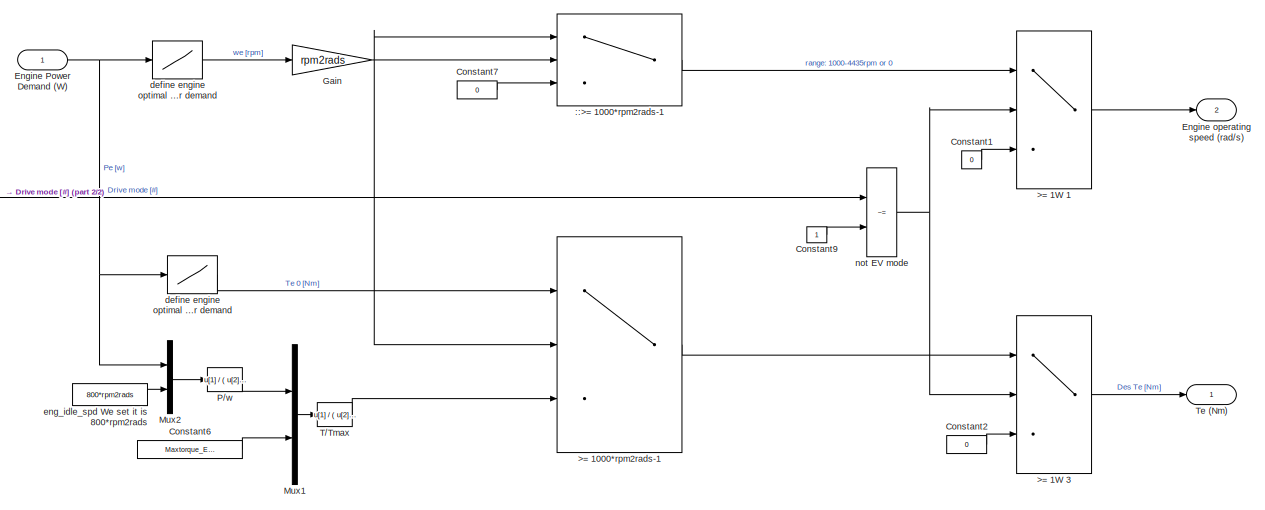
[diagram: DesignController/Benchmark-Controller/Torque Dis/HybridController/Drive/PMP-based S-function/engine speed - part 1/2, right side, full height]
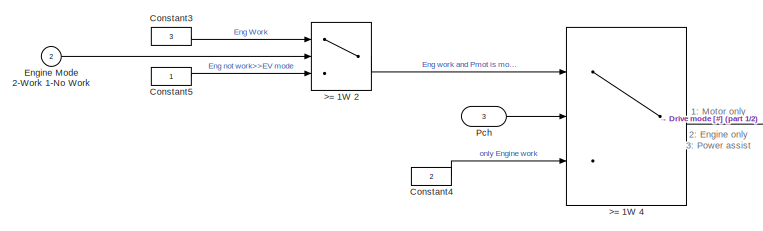
[diagram: DesignController/Benchmark-Controller/Torque Dis/HybridController/Drive/PMP-based S-function/engine speed - part 2/2, middle left region]
BLOCK [SubSystem] DesignController/Benchmark-Controller/Torque Dis/HybridController/Drive/PMP-based S-function/engine speed
  Ports = [3, 2]
  RequestExecContextInheritance = off
BLOCK [Switch] DesignController/Benchmark-Controller/Torque Dis/HybridController/Drive/PMP-based S-function/engine speed/::>=  1000*rpm2rads-1
  Threshold = 1000*rpm2rads-1
BLOCK [Switch] DesignController/Benchmark-Controller/Torque Dis/HybridController/Drive/PMP-based S-function/engine speed/>= 1000*rpm2rads-1
  Threshold = 1000*rpm2rads-1
BLOCK [Switch] DesignController/Benchmark-Controller/Torque Dis/HybridController/Drive/PMP-based S-function/engine speed/>= 1W 1
  Threshold = 0.5
BLOCK [Switch] DesignController/Benchmark-Controller/Torque Dis/HybridController/Drive/PMP-based S-function/engine speed/>= 1W 2
  Threshold = 2
BLOCK [Switch] DesignController/Benchmark-Controller/Torque Dis/HybridController/Drive/PMP-based S-function/engine speed/>= 1W 3
  Threshold = 0.5
BLOCK [Switch] DesignController/Benchmark-Controller/Torque Dis/HybridController/Drive/PMP-based S-function/engine speed/>= 1W 4
  Criteria = u2 > Threshold
BLOCK [Constant] DesignController/Benchmark-Controller/Torque Dis/HybridController/Drive/PMP-based S-function/engine speed/Constant1
  Value = 0
BLOCK [Constant] DesignController/Benchmark-Controller/Torque Dis/HybridController/Drive/PMP-based S-function/engine speed/Constant2
  Value = 0
BLOCK [Constant] DesignController/Benchmark-Controller/Torque Dis/HybridController/Drive/PMP-based S-function/engine speed/Constant3
  Value = 3
BLOCK [Constant] DesignController/Benchmark-Controller/Torque Dis/HybridController/Drive/PMP-based S-function/engine speed/Constant4
  Value = 2
BLOCK [Constant] DesignController/Benchmark-Controller/Torque Dis/HybridController/Drive/PMP-based S-function/engine speed/Constant5
BLOCK [Constant] DesignController/Benchmark-Controller/Torque Dis/HybridController/Drive/PMP-based S-function/engine speed/Constant6
  Value = Maxtorque_EngTrq(3)
BLOCK [Constant] DesignController/Benchmark-Controller/Torque Dis/HybridController/Drive/PMP-based S-function/engine speed/Constant7
  Value = 0
BLOCK [Constant] DesignController/Benchmark-Controller/Torque Dis/HybridController/Drive/PMP-based S-function/engine speed/Constant9
BLOCK [Inport] DesignController/Benchmark-Controller/Torque Dis/HybridController/Drive/PMP-based S-function/engine speed/Engine Mode 2-Work 1-No Work
  IconDisplay = Port number
  Port = 2
BLOCK [Inport] DesignController/Benchmark-Controller/Torque Dis/HybridController/Drive/PMP-based S-function/engine speed/Engine Power Demand (W)
  IconDisplay = Port number
BLOCK [Outport] DesignController/Benchmark-Controller/Torque Dis/HybridController/Drive/PMP-based S-function/engine speed/Engine operating speed (rad//s)
  IconDisplay = Port number
  Port = 2
BLOCK [Gain] DesignController/Benchmark-Controller/Torque Dis/HybridController/Drive/PMP-based S-function/engine speed/Gain
  Gain = rpm2rads
  OutDataTypeStr = Inherit: Inherit via internal rule
  ParamDataTypeStr = Inherit: Inherit via internal rule
  SaturateOnIntegerOverflow = off
BLOCK [Mux] DesignController/Benchmark-Controller/Torque Dis/HybridController/Drive/PMP-based S-function/engine speed/Mux1
  DisplayOption = bar
  Inputs = 2
  Ports = [2, 1]
BLOCK [Mux] DesignController/Benchmark-Controller/Torque Dis/HybridController/Drive/PMP-based S-function/engine speed/Mux2
  DisplayOption = bar
  Inputs = 2
  Ports = [2, 1]
BLOCK [Fcn] DesignController/Benchmark-Controller/Torque Dis/HybridController/Drive/PMP-based S-function/engine speed/P//w
  Expr = u[1] / ( u[2] + eps*(u[2] == 0) )
BLOCK [Inport] DesignController/Benchmark-Controller/Torque Dis/HybridController/Drive/PMP-based S-function/engine speed/Pch
  IconDisplay = Port number
  Port = 3
BLOCK [Fcn] DesignController/Benchmark-Controller/Torque Dis/HybridController/Drive/PMP-based S-function/engine speed/T//Tmax
  Expr = u[1] / ( u[2] + eps*(u[2] == 0) )
BLOCK [Outport] DesignController/Benchmark-Controller/Torque Dis/HybridController/Drive/PMP-based S-function/engine speed/Te (Nm)
  IconDisplay = Port number
BLOCK [Lookup] DesignController/Benchmark-Controller/Torque Dis/HybridController/Drive/PMP-based S-function/engine speed/define engine optimal speed (rpm) base on power demand
  InputValues = Power_level
  Table = N_opt
BLOCK [Lookup] DesignController/Benchmark-Controller/Torque Dis/HybridController/Drive/PMP-based S-function/engine speed/define engine optimal torque (Nm) base on power demand
  InputValues = Power_level
  Table = T_opt
BLOCK [Constant] DesignController/Benchmark-Controller/Torque Dis/HybridController/Drive/PMP-based S-function/engine speed/eng_idle_spd We set it is 800*rpm2rads
  Value = 800*rpm2rads
BLOCK [RelationalOperator] DesignController/Benchmark-Controller/Torque Dis/HybridController/Drive/PMP-based S-function/engine speed/not EV mode
  Operator = ~=
  Ports = [2, 1]
BLOCK [ModelReference] DesignController/Benchmark-Controller/Torque Dis/HybridController/Drive/PMP-based S-function/motor control1
  CopyOfModelProtected = on
  ModelNameDialog = TorquesSplit
  ModelReferenceVersion = 1.659
  Ports = [5, 2]
BLOCK [Gain] DesignController/Benchmark-Controller/Torque Dis/HybridController/Drive/PMP-based S-function/rpm -->>>rad//s
  Gain = rpm2rads
BLOCK [Gain] DesignController/Benchmark-Controller/Torque Dis/HybridController/Drive/PMP-based S-function/rpm----> rad//s
  Gain = rpm2rads
BLOCK [SubSystem] DesignController/Benchmark-Controller/Torque Dis/HybridController/Drive/PMP-based S-function/tire2mg2
  Ports = [1, 1]
  RequestExecContextInheritance = off
BLOCK [Gain] DesignController/Benchmark-Controller/Torque Dis/HybridController/Drive/PMP-based S-function/tire2mg2/Km//h>>m//s
  Gain = 1/3.6
  OutDataTypeStr = Inherit: Inherit via internal rule
  ParamDataTypeStr = Inherit: Inherit via internal rule
  SaturateOnIntegerOverflow = off
BLOCK [Outport] DesignController/Benchmark-Controller/Torque Dis/HybridController/Drive/PMP-based S-function/tire2mg2/Omg_mg2_Des_rads
  IconDisplay = Port number
BLOCK [Gain] DesignController/Benchmark-Controller/Torque Dis/HybridController/Drive/PMP-based S-function/tire2mg2/Rt : mm
  Gain = 1/Rt*1000
  OutDataTypeStr = Inherit: Inherit via internal rule
  ParamDataTypeStr = Inherit: Inherit via internal rule
  SaturateOnIntegerOverflow = off
BLOCK [Inport] DesignController/Benchmark-Controller/Torque Dis/HybridController/Drive/PMP-based S-function/tire2mg2/Spd_Veh_Des_km//h
  IconDisplay = Port number
BLOCK [Gain] DesignController/Benchmark-Controller/Torque Dis/HybridController/Drive/PMP-based S-function/tire2mg2/tx_pg_r//tx_pg_s1
  Gain = Rf2/Rf1
BLOCK [Gain] DesignController/Benchmark-Controller/Torque Dis/HybridController/Drive/PMP-based S-function/tire2mg2/tx_pg_r//tx_pg_s2
  Gain = Rc2/Rm
BLOCK [Inport] DesignController/Benchmark-Controller/Torque Dis/HybridController/Drive/Preq-seq [kw]
  IconDisplay = Port number
  Port = 3
BLOCK [Inport] DesignController/Benchmark-Controller/Torque Dis/HybridController/Drive/SOC [%]
  IconDisplay = Port number
  Port = 5
BLOCK [Inport] DesignController/Benchmark-Controller/Torque Dis/HybridController/Drive/Sampling_Lowlayer [s]
  IconDisplay = Port number
  Port = 2
  SampleTime = 0.05
BLOCK [Outport] DesignController/Benchmark-Controller/Torque Dis/HybridController/Drive/TQ_brake_des (Nm)
  IconDisplay = Port number
  Port = 4
BLOCK [Outport] DesignController/Benchmark-Controller/Torque Dis/HybridController/Drive/TQ_eng_des (Nm)
  IconDisplay = Port number
BLOCK [Outport] DesignController/Benchmark-Controller/Torque Dis/HybridController/Drive/TQ_mg1_des (Nm)
  IconDisplay = Port number
  Port = 2
BLOCK [Outport] DesignController/Benchmark-Controller/Torque Dis/HybridController/Drive/TQ_mg2_des (Nm)
  IconDisplay = Port number
  Port = 3
BLOCK [Inport] DesignController/Benchmark-Controller/Torque Dis/HybridController/Drive/mg2 speed (rpm)
  IconDisplay = Port number
  Port = 6
BLOCK [Inport] DesignController/Benchmark-Controller/Torque Dis/HybridController/Horizon_Lowlayer [s]
  IconDisplay = Port number
  SampleTime = 0.05
BLOCK [Mux] DesignController/Benchmark-Controller/Torque Dis/HybridController/Mux1
  DisplayOption = bar
  Ports = [4, 1]
BLOCK [Mux] DesignController/Benchmark-Controller/Torque Dis/HybridController/Mux2
  DisplayOption = bar
  Ports = [4, 1]
BLOCK [Inport] DesignController/Benchmark-Controller/Torque Dis/HybridController/P_des_now (PID) [kw]
  IconDisplay = Port number
  Port = 4
BLOCK [Inport] DesignController/Benchmark-Controller/Torque Dis/HybridController/P_req_predict (Seq) [kw]
  IconDisplay = Port number
  Port = 3
BLOCK [Inport] DesignController/Benchmark-Controller/Torque Dis/HybridController/Sampling_Lowlayer [s]
  IconDisplay = Port number
  Port = 2
  SampleTime = 0.05
BLOCK [SubSystem] DesignController/Benchmark-Controller/Torque Dis/HybridController/VehSpd->TireSpd
  Ports = [1, 1]
  RequestExecContextInheritance = off
BLOCK [Gain] DesignController/Benchmark-Controller/Torque Dis/HybridController/VehSpd->TireSpd/Km//h>>m//s
  Gain = 1/3.6
  OutDataTypeStr = Inherit: Inherit via internal rule
  ParamDataTypeStr = Inherit: Inherit via internal rule
  SaturateOnIntegerOverflow = off
BLOCK [Outport] DesignController/Benchmark-Controller/Torque Dis/HybridController/VehSpd->TireSpd/Tire_spd [rad//s]
  IconDisplay = Port number
BLOCK [Inport] DesignController/Benchmark-Controller/Torque Dis/HybridController/VehSpd->TireSpd/VehSpd_real (km//h)
  IconDisplay = Port number
BLOCK [Gain] DesignController/Benchmark-Controller/Torque Dis/HybridController/VehSpd->TireSpd/because:Rt : mm
  Gain = 1/Rt*1000
  OutDataTypeStr = Inherit: Inherit via internal rule
  ParamDataTypeStr = Inherit: Inherit via internal rule
  SaturateOnIntegerOverflow = off
BLOCK [Inport] DesignController/Benchmark-Controller/Torque Dis/HybridController/Veh_Spd_act [km//h]
  IconDisplay = Port number
  Port = 9
BLOCK [Outport] DesignController/Benchmark-Controller/Torque Dis/HybridController/engine torque command (Nm)
  IconDisplay = Port number
BLOCK [Outport] DesignController/Benchmark-Controller/Torque Dis/HybridController/friction brake torque (Nm)
  IconDisplay = Port number
  Port = 4
BLOCK [Outport] DesignController/Benchmark-Controller/Torque Dis/HybridController/generator torque command (Nm)
  IconDisplay = Port number
  Port = 2
BLOCK [Outport] DesignController/Benchmark-Controller/Torque Dis/HybridController/motor torque command (Nm)
  IconDisplay = Port number
  Port = 3
BLOCK [Inport] DesignController/Benchmark-Controller/Torque Dis/HybridController/omega_gen (rpm)
  IconDisplay = Port number
  Port = 8
BLOCK [Inport] DesignController/Benchmark-Controller/Torque Dis/HybridController/omega_motor (rpm)
  IconDisplay = Port number
  Port = 7
BLOCK [Switch] DesignController/Benchmark-Controller/Torque Dis/HybridController/power >=0 drive <0 brake
  Criteria = u2 > Threshold
  InputSameDT = off
BLOCK [Inport] DesignController/Benchmark-Controller/Torque Dis/HybridController/soc_act (%)
  IconDisplay = Port number
  Port = 6
BLOCK [Mux] DesignController/Benchmark-Controller/Torque Dis/Mux
  DisplayOption = bar
  Ports = [4, 1]
BLOCK [Inport] DesignController/Benchmark-Controller/Torque Dis/N_MG1 (rpm)
  IconDisplay = Port number
  Port = 6
BLOCK [Inport] DesignController/Benchmark-Controller/Torque Dis/N_MG2 (rpm)
  IconDisplay = Port number
  Port = 5
BLOCK [RateTransition] DesignController/Benchmark-Controller/Torque Dis/Rate Transition1
  OutPortSampleTime = 0.01
BLOCK [RateTransition] DesignController/Benchmark-Controller/Torque Dis/Rate Transition2
  OutPortSampleTime = 0.01
BLOCK [RateTransition] DesignController/Benchmark-Controller/Torque Dis/Rate Transition6
  OutPortSampleTime = 0.05
BLOCK [RateTransition] DesignController/Benchmark-Controller/Torque Dis/Rate Transition7
  Commented = on
  OutPortSampleTime = 0.05
BLOCK [RateTransition] DesignController/Benchmark-Controller/Torque Dis/Rate Transition8
  OutPortSampleTime = 0.05
BLOCK [RateTransition] DesignController/Benchmark-Controller/Torque Dis/Rate Transition9
  OutPortSampleTime = 0.05
BLOCK [Inport] DesignController/Benchmark-Controller/Torque Dis/SOC_act (%)
  IconDisplay = Port number
  Port = 3
BLOCK [Constant] DesignController/Benchmark-Controller/Torque Dis/Sampling_Lowlayer [s]
  Value = Sampling_Lowlayer
BLOCK [Outport] DesignController/Benchmark-Controller/Torque Dis/TQ_trg
  IconDisplay = Port number
BLOCK [Inport] DesignController/Benchmark-Controller/Torque Dis/V2X
  IconDisplay = Port number
BLOCK [Inport] DesignController/Benchmark-Controller/Torque Dis/Vel_act(Km//h)
  IconDisplay = Port number
  Port = 4
BLOCK [Fcn] DesignController/Benchmark-Controller/Torque Dis/distance_vector
  Expr = u(2)
BLOCK [Inport] DesignController/Benchmark-Controller/V2X
  IconDisplay = Port number
BLOCK [Outport] DesignController/F_brk
  IconDisplay = Port number
  Port = 4
BLOCK [Inport] DesignController/Plant_Out
  IconDisplay = Port number
  Port = 2
BLOCK [Outport] DesignController/Te_trg
  IconDisplay = Port number
BLOCK [Outport] DesignController/Tm1_trg
  IconDisplay = Port number
  Port = 2
BLOCK [Outport] DesignController/Tm2_trg
  IconDisplay = Port number
  Port = 3
BLOCK [Inport] DesignController/V2X
  IconDisplay = Port number
BLOCK [From] From11
  GotoTag = Plant_Out
  TagVisibility = global
BLOCK [ToWorkspace] To Workspace3
  FixptAsFi = on
  MaxDataPoints = inf
  Ports = [1]
  SampleTime = -1
  Save2DSignal = 3-D array (concatenate along third dimension)
  SaveFormat = Timeseries
  VariableName = Controller_Out1
ANNOTATION (root): The E-CoSM 2021 benchmark challenge is still an open topic, the relevant benchmark problem description and the simulator can be provided via the link: http://shenlab.jp/ecosm2021/program/benchmark-challenge.html . However, in this repository, the simulator used for testing the challengers' controllers in E-CoSM 2021 is not directly available for <copyright redacted>
ANNOTATION DesignController/Benchmark-Controller/Torque Dis/Driver Model/B4 - PID: PI controller with: (i) limited integral action, (ii) resettable integral part
ANNOTATION DesignController/Benchmark-Controller/Torque Dis/HybridController/Brake: N_tire*(Rf2/Rf1)*(Rc2/Rm)=omega_m N_tire*(Rf2*Rc2)/(Rf1*Rm)=omega_m =>> (Rf2*Rc2)/(Rf1*Rm) = 12.3065 MG2转得快，MG2力矩<车轮上的力矩!! N_tire=omega_m*(R_f1*R_m)/(R_f2*R_c2)
ANNOTATION DesignController/Benchmark-Controller/Torque Dis/HybridController/Brake/Regen Control: Rt=317.25mm, Rt*0.4=0.4568km/h
ANNOTATION DesignController/Benchmark-Controller/Torque Dis/HybridController/Drive/PMP-based S-function/engine speed: 1: Motor only 2: Engine only 3: Power assist
LINE Bus Creator2:1 -> To Workspace3:1
LINE DesignController/Benchmark-Controller/Bus Selector:1 -> DesignController/Benchmark-Controller/Memory1:1
LINE DesignController/Benchmark-Controller/Bus Selector:2 -> DesignController/Benchmark-Controller/Memory:1
LINE DesignController/Benchmark-Controller/Bus Selector:3 -> DesignController/Benchmark-Controller/Memory4:1
LINE DesignController/Benchmark-Controller/Bus Selector:4 -> DesignController/Benchmark-Controller/Memory3:1
LINE DesignController/Benchmark-Controller/Demux1:1 -> DesignController/Benchmark-Controller/Te_trg:1
LINE DesignController/Benchmark-Controller/Demux1:2 -> DesignController/Benchmark-Controller/Tm1_trg:1
LINE DesignController/Benchmark-Controller/Demux1:3 -> DesignController/Benchmark-Controller/Tm2_trg:1
LINE DesignController/Benchmark-Controller/Demux1:4 -> DesignController/Benchmark-Controller/F_brk:1
LINE DesignController/Benchmark-Controller/Memory1:1 -> DesignController/Benchmark-Controller/Rate Transition3:1
LINE DesignController/Benchmark-Controller/Memory3:1 -> DesignController/Benchmark-Controller/Rate Transition7:1
LINE DesignController/Benchmark-Controller/Memory4:1 -> DesignController/Benchmark-Controller/Rate Transition6:1
LINE DesignController/Benchmark-Controller/Memory:1 -> DesignController/Benchmark-Controller/Rate Transition4:1
LINE DesignController/Benchmark-Controller/Plant_Out:1 -> DesignController/Benchmark-Controller/Bus Selector:1
LINE DesignController/Benchmark-Controller/Rate Transition1:1 -> DesignController/Benchmark-Controller/Demux1:1
LINE DesignController/Benchmark-Controller/Rate Transition3:1 -> DesignController/Benchmark-Controller/Torque Dis:3
LINE DesignController/Benchmark-Controller/Rate Transition4:1 -> DesignController/Benchmark-Controller/Torque Dis:4
LINE DesignController/Benchmark-Controller/Rate Transition6:1 -> DesignController/Benchmark-Controller/Torque Dis:5
LINE DesignController/Benchmark-Controller/Rate Transition7:1 -> DesignController/Benchmark-Controller/Torque Dis:6
LINE DesignController/Benchmark-Controller/Speed Planning/ 1:1 -> DesignController/Benchmark-Controller/Speed Planning/Add4:2
LINE DesignController/Benchmark-Controller/Speed Planning/Add4:1 -> DesignController/Benchmark-Controller/Speed Planning/SignalNum Calcu:2
LINE DesignController/Benchmark-Controller/Speed Planning/Clock1:1 -> DesignController/Benchmark-Controller/Speed Planning/Mux2:3
LINE DesignController/Benchmark-Controller/Speed Planning/Fcn2:1 -> DesignController/Benchmark-Controller/Speed Planning/SignalNum Calcu:1
LINE DesignController/Benchmark-Controller/Speed Planning/Fcn6:1 -> DesignController/Benchmark-Controller/Speed Planning/Add4:1
LINE DesignController/Benchmark-Controller/Speed Planning/Gain1:1 -> DesignController/Benchmark-Controller/Speed Planning/v_des_future [km//h]:1
LINE DesignController/Benchmark-Controller/Speed Planning/Interpreted MATLAB Function2:1 -> DesignController/Benchmark-Controller/Speed Planning/after2:1
LINE DesignController/Benchmark-Controller/Speed Planning/MATLAB Function3:1 -> DesignController/Benchmark-Controller/Speed Planning/Gain1:1
LINE DesignController/Benchmark-Controller/Speed Planning/Mux2:1 -> DesignController/Benchmark-Controller/Speed Planning/before1:1
NET DesignController/Benchmark-Controller/Speed Planning/SignalNum Calcu:1 -> DesignController/Benchmark-Controller/Speed Planning/Mux2:4, DesignController/Benchmark-Controller/Speed Planning/To Workspace2:1
LINE DesignController/Benchmark-Controller/Speed Planning/SignalNum Calcu:2 -> DesignController/Benchmark-Controller/Speed Planning/To Workspace1:1
NET DesignController/Benchmark-Controller/Speed Planning/V2X:1 -> DesignController/Benchmark-Controller/Speed Planning/Fcn2:1, DesignController/Benchmark-Controller/Speed Planning/Fcn6:1, DesignController/Benchmark-Controller/Speed Planning/Mux2:2
LINE DesignController/Benchmark-Controller/Speed Planning/after2:1 -> DesignController/Benchmark-Controller/Speed Planning/MATLAB Function3:1
LINE DesignController/Benchmark-Controller/Speed Planning/before1:1 -> DesignController/Benchmark-Controller/Speed Planning/Interpreted MATLAB Function2:1
LINE DesignController/Benchmark-Controller/Speed Planning/v_predic_p:1 -> DesignController/Benchmark-Controller/Speed Planning/Mux2:1
LINE DesignController/Benchmark-Controller/Speed Planning:1 -> DesignController/Benchmark-Controller/Torque Dis:2
LINE DesignController/Benchmark-Controller/Speed Prediction/Clock1:1 -> DesignController/Benchmark-Controller/Speed Prediction/before3:1
LINE DesignController/Benchmark-Controller/Speed Prediction/Delay/Delay10:1 -> DesignController/Benchmark-Controller/Speed Prediction/Delay/Mux:12
LINE DesignController/Benchmark-Controller/Speed Prediction/Delay/Delay11:1 -> DesignController/Benchmark-Controller/Speed Prediction/Delay/Mux:13
LINE DesignController/Benchmark-Controller/Speed Prediction/Delay/Delay12:1 -> DesignController/Benchmark-Controller/Speed Prediction/Delay/Mux:14
LINE DesignController/Benchmark-Controller/Speed Prediction/Delay/Delay13:1 -> DesignController/Benchmark-Controller/Speed Prediction/Delay/Mux:15
LINE DesignController/Benchmark-Controller/Speed Prediction/Delay/Delay14:1 -> DesignController/Benchmark-Controller/Speed Prediction/Delay/Mux:16
LINE DesignController/Benchmark-Controller/Speed Prediction/Delay/Delay15:1 -> DesignController/Benchmark-Controller/Speed Prediction/Delay/Mux:17
LINE DesignController/Benchmark-Controller/Speed Prediction/Delay/Delay16:1 -> DesignController/Benchmark-Controller/Speed Prediction/Delay/Mux:18
LINE DesignController/Benchmark-Controller/Speed Prediction/Delay/Delay17:1 -> DesignController/Benchmark-Controller/Speed Prediction/Delay/Mux:19
LINE DesignController/Benchmark-Controller/Speed Prediction/Delay/Delay18:1 -> DesignController/Benchmark-Controller/Speed Prediction/Delay/Mux:20
LINE DesignController/Benchmark-Controller/Speed Prediction/Delay/Delay1:1 -> DesignController/Benchmark-Controller/Speed Prediction/Delay/Mux:3
LINE DesignController/Benchmark-Controller/Speed Prediction/Delay/Delay2:1 -> DesignController/Benchmark-Controller/Speed Prediction/Delay/Mux:4
LINE DesignController/Benchmark-Controller/Speed Prediction/Delay/Delay3:1 -> DesignController/Benchmark-Controller/Speed Prediction/Delay/Mux:5
LINE DesignController/Benchmark-Controller/Speed Prediction/Delay/Delay4:1 -> DesignController/Benchmark-Controller/Speed Prediction/Delay/Mux:6
LINE DesignController/Benchmark-Controller/Speed Prediction/Delay/Delay5:1 -> DesignController/Benchmark-Controller/Speed Prediction/Delay/Mux:7
LINE DesignController/Benchmark-Controller/Speed Prediction/Delay/Delay6:1 -> DesignController/Benchmark-Controller/Speed Prediction/Delay/Mux:8
LINE DesignController/Benchmark-Controller/Speed Prediction/Delay/Delay7:1 -> DesignController/Benchmark-Controller/Speed Prediction/Delay/Mux:9
LINE DesignController/Benchmark-Controller/Speed Prediction/Delay/Delay8:1 -> DesignController/Benchmark-Controller/Speed Prediction/Delay/Mux:10
LINE DesignController/Benchmark-Controller/Speed Prediction/Delay/Delay9:1 -> DesignController/Benchmark-Controller/Speed Prediction/Delay/Mux:11
LINE DesignController/Benchmark-Controller/Speed Prediction/Delay/Delay:1 -> DesignController/Benchmark-Controller/Speed Prediction/Delay/Mux:2
NET DesignController/Benchmark-Controller/Speed Prediction/Delay/In1:1 -> DesignController/Benchmark-Controller/Speed Prediction/Delay/Delay10:1, DesignController/Benchmark-Controller/Speed Prediction/Delay/Delay11:1, DesignController/Benchmark-Controller/Speed Prediction/Delay/Delay12:1, DesignController/Benchmark-Controller/Speed Prediction/Delay/Delay13:1, DesignController/Benchmark-Controller/Speed Prediction/Delay/Delay14:1, DesignController/Benchmark-Controller/Speed Prediction/Delay/Delay15:1, DesignController/Benchmark-Controller/Speed Prediction/Delay/Delay16:1, DesignController/Benchmark-Controller/Speed Prediction/Delay/Delay17:1, DesignController/Benchmark-Controller/Speed Prediction/Delay/Delay18:1, DesignController/Benchmark-Controller/Speed Prediction/Delay/Delay1:1, DesignController/Benchmark-Controller/Speed Prediction/Delay/Delay2:1, DesignController/Benchmark-Controller/Speed Prediction/Delay/Delay3:1, DesignController/Benchmark-Controller/Speed Prediction/Delay/Delay4:1, DesignController/Benchmark-Controller/Speed Prediction/Delay/Delay5:1, DesignController/Benchmark-Controller/Speed Prediction/Delay/Delay6:1, DesignController/Benchmark-Controller/Speed Prediction/Delay/Delay7:1, DesignController/Benchmark-Controller/Speed Prediction/Delay/Delay8:1, DesignController/Benchmark-Controller/Speed Prediction/Delay/Delay9:1, DesignController/Benchmark-Controller/Speed Prediction/Delay/Delay:1, DesignController/Benchmark-Controller/Speed Prediction/Delay/Mux:1
LINE DesignController/Benchmark-Controller/Speed Prediction/Delay/Mux:1 -> DesignController/Benchmark-Controller/Speed Prediction/Delay/Out1:1
LINE DesignController/Benchmark-Controller/Speed Prediction/Delay:1 -> DesignController/Benchmark-Controller/Speed Prediction/Mux:1
LINE DesignController/Benchmark-Controller/Speed Prediction/Interpreted MATLAB Function:1 -> DesignController/Benchmark-Controller/Speed Prediction/after1:1
LINE DesignController/Benchmark-Controller/Speed Prediction/MATLAB Function1:1 -> DesignController/Benchmark-Controller/Speed Prediction/v_predict_p:1
LINE DesignController/Benchmark-Controller/Speed Prediction/Mux:1 -> DesignController/Benchmark-Controller/Speed Prediction/Interpreted MATLAB Function:1
LINE DesignController/Benchmark-Controller/Speed Prediction/V2X:1 -> DesignController/Benchmark-Controller/Speed Prediction/v_pre [m//s]:1
LINE DesignController/Benchmark-Controller/Speed Prediction/after1:1 -> DesignController/Benchmark-Controller/Speed Prediction/MATLAB Function1:1
LINE DesignController/Benchmark-Controller/Speed Prediction/before3:1 -> DesignController/Benchmark-Controller/Speed Prediction/Mux:2
LINE DesignController/Benchmark-Controller/Speed Prediction/before4:1 -> DesignController/Benchmark-Controller/Speed Prediction/Delay:1
LINE DesignController/Benchmark-Controller/Speed Prediction/v_pre [m//s]:1 -> DesignController/Benchmark-Controller/Speed Prediction/before4:1
LINE DesignController/Benchmark-Controller/Speed Prediction:1 -> DesignController/Benchmark-Controller/Speed Planning:1
LINE DesignController/Benchmark-Controller/Stop Condition/Constant:1 -> DesignController/Benchmark-Controller/Stop Condition/Relational Operator:2
LINE DesignController/Benchmark-Controller/Stop Condition/Relational Operator:1 -> DesignController/Benchmark-Controller/Stop Condition/Stop Simulation:1
LINE DesignController/Benchmark-Controller/Stop Condition/V2X:1 -> DesignController/Benchmark-Controller/Stop Condition/s_h [m]:1
LINE DesignController/Benchmark-Controller/Stop Condition/s_h [m]:1 -> DesignController/Benchmark-Controller/Stop Condition/Relational Operator:1
NET DesignController/Benchmark-Controller/Torque Dis/Des_Vel_Seq(Km//h):1 -> DesignController/Benchmark-Controller/Torque Dis/Driver Model:4, DesignController/Benchmark-Controller/Torque Dis/Rate Transition6:1
NET DesignController/Benchmark-Controller/Torque Dis/Driver Model/B4 - PID/-100kw to 100kw :1 -> DesignController/Benchmark-Controller/Torque Dis/Driver Model/B4 - PID/Rate Transition3:1, DesignController/Benchmark-Controller/Torque Dis/Driver Model/B4 - PID/Scope:4, DesignController/Benchmark-Controller/Torque Dis/Driver Model/B4 - PID/Sum5:2
LINE DesignController/Benchmark-Controller/Torque Dis/Driver Model/B4 - PID/1//Tt_c1:1 -> DesignController/Benchmark-Controller/Torque Dis/Driver Model/B4 - PID/Ki1+ki2=SumKi:2
LINE DesignController/Benchmark-Controller/Torque Dis/Driver Model/B4 - PID/Discrete-Time Integrator:1 -> DesignController/Benchmark-Controller/Torque Dis/Driver Model/B4 - PID/drv.ctrl.init.ki:1
NET DesignController/Benchmark-Controller/Torque Dis/Driver Model/B4 - PID/Ki1+ki2=SumKi:1 -> DesignController/Benchmark-Controller/Torque Dis/Driver Model/B4 - PID/Discrete-Time Integrator:1, DesignController/Benchmark-Controller/Torque Dis/Driver Model/B4 - PID/Scope:2
LINE DesignController/Benchmark-Controller/Torque Dis/Driver Model/B4 - PID/Rate Transition3:1 -> DesignController/Benchmark-Controller/Torque Dis/Driver Model/B4 - PID/delta Power [kw]:1
NET DesignController/Benchmark-Controller/Torque Dis/Driver Model/B4 - PID/Subtract:1 -> DesignController/Benchmark-Controller/Torque Dis/Driver Model/B4 - PID/drv.ctrl.init.ki_WYH:1, DesignController/Benchmark-Controller/Torque Dis/Driver Model/B4 - PID/drv.ctrl.init.kp_0615canshu:1
LINE DesignController/Benchmark-Controller/Torque Dis/Driver Model/B4 - PID/Sum5:1 -> DesignController/Benchmark-Controller/Torque Dis/Driver Model/B4 - PID/1//Tt_c1:1
NET DesignController/Benchmark-Controller/Torque Dis/Driver Model/B4 - PID/Sum:1 -> DesignController/Benchmark-Controller/Torque Dis/Driver Model/B4 - PID/-100kw to 100kw :1, DesignController/Benchmark-Controller/Torque Dis/Driver Model/B4 - PID/Scope:3, DesignController/Benchmark-Controller/Torque Dis/Driver Model/B4 - PID/Sum5:1
LINE DesignController/Benchmark-Controller/Torque Dis/Driver Model/B4 - PID/drv.ctrl.init.ki:1 -> DesignController/Benchmark-Controller/Torque Dis/Driver Model/B4 - PID/Sum:2
LINE DesignController/Benchmark-Controller/Torque Dis/Driver Model/B4 - PID/drv.ctrl.init.ki_WYH:1 -> DesignController/Benchmark-Controller/Torque Dis/Driver Model/B4 - PID/Ki1+ki2=SumKi:1
NET DesignController/Benchmark-Controller/Torque Dis/Driver Model/B4 - PID/drv.ctrl.init.kp_0615canshu:1 -> DesignController/Benchmark-Controller/Torque Dis/Driver Model/B4 - PID/Scope:1, DesignController/Benchmark-Controller/Torque Dis/Driver Model/B4 - PID/Sum:1
LINE DesignController/Benchmark-Controller/Torque Dis/Driver Model/B4 - PID/v_des_now [km//h]:1 -> DesignController/Benchmark-Controller/Torque Dis/Driver Model/B4 - PID/Subtract:1
LINE DesignController/Benchmark-Controller/Torque Dis/Driver Model/B4 - PID/v_real_now [km//h]:1 -> DesignController/Benchmark-Controller/Torque Dis/Driver Model/B4 - PID/Subtract:2
LINE DesignController/Benchmark-Controller/Torque Dis/Driver Model/B4 - PID:1 -> DesignController/Benchmark-Controller/Torque Dis/Driver Model/Power_cal:5
NET DesignController/Benchmark-Controller/Torque Dis/Driver Model/Des_VehSpd_Seq [Km//h]:1 -> DesignController/Benchmark-Controller/Torque Dis/Driver Model/Fcn:1, DesignController/Benchmark-Controller/Torque Dis/Driver Model/Power_cal:3
LINE DesignController/Benchmark-Controller/Torque Dis/Driver Model/Fcn:1 -> DesignController/Benchmark-Controller/Torque Dis/Driver Model/B4 - PID:1
LINE DesignController/Benchmark-Controller/Torque Dis/Driver Model/Horizon_Lowlayer [s]:1 -> DesignController/Benchmark-Controller/Torque Dis/Driver Model/Power_cal:1
LINE DesignController/Benchmark-Controller/Torque Dis/Driver Model/Power_cal/Cal_des_TQ_Omega_P(now):1 -> DesignController/Benchmark-Controller/Torque Dis/Driver Model/Power_cal/Power_Seq:5
LINE DesignController/Benchmark-Controller/Torque Dis/Driver Model/Power_cal/Cal_des_TQ_Omega_P(now):2 -> DesignController/Benchmark-Controller/Torque Dis/Driver Model/Power_cal/Power_Seq:6
LINE DesignController/Benchmark-Controller/Torque Dis/Driver Model/Power_cal/Cal_des_TQ_Omega_P(now):3 -> DesignController/Benchmark-Controller/Torque Dis/Driver Model/Power_cal/Sum1:2
LINE DesignController/Benchmark-Controller/Torque Dis/Driver Model/Power_cal/Dist_init [m]:1 -> DesignController/Benchmark-Controller/Torque Dis/Driver Model/Power_cal/Slope:3
LINE DesignController/Benchmark-Controller/Torque Dis/Driver Model/Power_cal/Fcn:1 -> DesignController/Benchmark-Controller/Torque Dis/Driver Model/Power_cal/To Workspace21:1
NET DesignController/Benchmark-Controller/Torque Dis/Driver Model/Power_cal/Horizon_Lowlayer [s]:1 -> DesignController/Benchmark-Controller/Torque Dis/Driver Model/Power_cal/Power_Seq:1, DesignController/Benchmark-Controller/Torque Dis/Driver Model/Power_cal/Slope:1
LINE DesignController/Benchmark-Controller/Torque Dis/Driver Model/Power_cal/P_only_PID [kw]:1 -> DesignController/Benchmark-Controller/Torque Dis/Driver Model/Power_cal/Sum1:1
LINE DesignController/Benchmark-Controller/Torque Dis/Driver Model/Power_cal/Power_Seq:1 -> DesignController/Benchmark-Controller/Torque Dis/Driver Model/Power_cal/P_req_predict (Seq) [kw]:1
NET DesignController/Benchmark-Controller/Torque Dis/Driver Model/Power_cal/Sampling_Lowlayer [s]:1 -> DesignController/Benchmark-Controller/Torque Dis/Driver Model/Power_cal/Power_Seq:2, DesignController/Benchmark-Controller/Torque Dis/Driver Model/Power_cal/Slope:2
NET DesignController/Benchmark-Controller/Torque Dis/Driver Model/Power_cal/Seq_v_des_req [km//h]:1 -> DesignController/Benchmark-Controller/Torque Dis/Driver Model/Power_cal/Cal_des_TQ_Omega_P(now):1, DesignController/Benchmark-Controller/Torque Dis/Driver Model/Power_cal/Slope:4, DesignController/Benchmark-Controller/Torque Dis/Driver Model/Power_cal/km//h >> m//s:1
NET DesignController/Benchmark-Controller/Torque Dis/Driver Model/Power_cal/Slope:1 -> DesignController/Benchmark-Controller/Torque Dis/Driver Model/Power_cal/Cal_des_TQ_Omega_P(now):2, DesignController/Benchmark-Controller/Torque Dis/Driver Model/Power_cal/Fcn:1, DesignController/Benchmark-Controller/Torque Dis/Driver Model/Power_cal/Power_Seq:7
NET DesignController/Benchmark-Controller/Torque Dis/Driver Model/Power_cal/Sum1:1 -> DesignController/Benchmark-Controller/Torque Dis/Driver Model/Power_cal/Power_Seq:4, DesignController/Benchmark-Controller/Torque Dis/Driver Model/Power_cal/Power_des_now [kw]:1
LINE DesignController/Benchmark-Controller/Torque Dis/Driver Model/Power_cal/km//h >> m//s:1 -> DesignController/Benchmark-Controller/Torque Dis/Driver Model/Power_cal/Power_Seq:3
LINE DesignController/Benchmark-Controller/Torque Dis/Driver Model/Power_cal:1 -> DesignController/Benchmark-Controller/Torque Dis/Driver Model/P_req_predict (Seq) [kw]:1
NET DesignController/Benchmark-Controller/Torque Dis/Driver Model/Power_cal:2 -> DesignController/Benchmark-Controller/Torque Dis/Driver Model/P_des_now (PID) [kw]:1, DesignController/Benchmark-Controller/Torque Dis/Driver Model/To Workspace21:1
LINE DesignController/Benchmark-Controller/Torque Dis/Driver Model/Sampling_Lowlayer [s]:1 -> DesignController/Benchmark-Controller/Torque Dis/Driver Model/Power_cal:2
LINE DesignController/Benchmark-Controller/Torque Dis/Driver Model/Unit Delay:1 -> DesignController/Benchmark-Controller/Torque Dis/Driver Model/Power_cal:4
LINE DesignController/Benchmark-Controller/Torque Dis/Driver Model/v2x->dist&slope:1 -> DesignController/Benchmark-Controller/Torque Dis/Driver Model/Unit Delay:1
LINE DesignController/Benchmark-Controller/Torque Dis/Driver Model/v_spd_now [km//h]:1 -> DesignController/Benchmark-Controller/Torque Dis/Driver Model/B4 - PID:2
LINE DesignController/Benchmark-Controller/Torque Dis/Driver Model:1 -> DesignController/Benchmark-Controller/Torque Dis/Rate Transition8:1
LINE DesignController/Benchmark-Controller/Torque Dis/Driver Model:2 -> DesignController/Benchmark-Controller/Torque Dis/Rate Transition9:1
NET DesignController/Benchmark-Controller/Torque Dis/Horizon_Lowlayer [s]:1 -> DesignController/Benchmark-Controller/Torque Dis/HybridController:1, DesignController/Benchmark-Controller/Torque Dis/Rate Transition1:1
LINE DesignController/Benchmark-Controller/Torque Dis/HybridController/Brake:1 -> DesignController/Benchmark-Controller/Torque Dis/HybridController/Mux2:1
LINE DesignController/Benchmark-Controller/Torque Dis/HybridController/Brake:2 -> DesignController/Benchmark-Controller/Torque Dis/HybridController/Mux2:2
LINE DesignController/Benchmark-Controller/Torque Dis/HybridController/Brake:3 -> DesignController/Benchmark-Controller/Torque Dis/HybridController/Mux2:3
LINE DesignController/Benchmark-Controller/Torque Dis/HybridController/Brake:4 -> DesignController/Benchmark-Controller/Torque Dis/HybridController/Mux2:4
LINE DesignController/Benchmark-Controller/Torque Dis/HybridController/Demux1:1 -> DesignController/Benchmark-Controller/Torque Dis/HybridController/engine torque command (Nm):1
LINE DesignController/Benchmark-Controller/Torque Dis/HybridController/Demux1:2 -> DesignController/Benchmark-Controller/Torque Dis/HybridController/generator torque command (Nm):1
LINE DesignController/Benchmark-Controller/Torque Dis/HybridController/Demux1:3 -> DesignController/Benchmark-Controller/Torque Dis/HybridController/motor torque command (Nm):1
LINE DesignController/Benchmark-Controller/Torque Dis/HybridController/Demux1:4 -> DesignController/Benchmark-Controller/Torque Dis/HybridController/friction brake torque (Nm):1
LINE DesignController/Benchmark-Controller/Torque Dis/HybridController/Des_VehSpd_Seq [Km//h]:1 -> DesignController/Benchmark-Controller/Torque Dis/HybridController/Drive:4
LINE DesignController/Benchmark-Controller/Torque Dis/HybridController/Drive:1 -> DesignController/Benchmark-Controller/Torque Dis/HybridController/Mux1:1
LINE DesignController/Benchmark-Controller/Torque Dis/HybridController/Drive:2 -> DesignController/Benchmark-Controller/Torque Dis/HybridController/Mux1:2
LINE DesignController/Benchmark-Controller/Torque Dis/HybridController/Drive:3 -> DesignController/Benchmark-Controller/Torque Dis/HybridController/Mux1:3
LINE DesignController/Benchmark-Controller/Torque Dis/HybridController/Drive:4 -> DesignController/Benchmark-Controller/Torque Dis/HybridController/Mux1:4
LINE DesignController/Benchmark-Controller/Torque Dis/HybridController/Horizon_Lowlayer [s]:1 -> DesignController/Benchmark-Controller/Torque Dis/HybridController/Drive:1
LINE DesignController/Benchmark-Controller/Torque Dis/HybridController/Mux1:1 -> DesignController/Benchmark-Controller/Torque Dis/HybridController/power >=0 drive <0 brake:1
LINE DesignController/Benchmark-Controller/Torque Dis/HybridController/Mux2:1 -> DesignController/Benchmark-Controller/Torque Dis/HybridController/power >=0 drive <0 brake:3
NET DesignController/Benchmark-Controller/Torque Dis/HybridController/P_des_now (PID) [kw]:1 -> DesignController/Benchmark-Controller/Torque Dis/HybridController/Brake:1, DesignController/Benchmark-Controller/Torque Dis/HybridController/power >=0 drive <0 brake:2
LINE DesignController/Benchmark-Controller/Torque Dis/HybridController/P_req_predict (Seq) [kw]:1 -> DesignController/Benchmark-Controller/Torque Dis/HybridController/Drive:3
LINE DesignController/Benchmark-Controller/Torque Dis/HybridController/Sampling_Lowlayer [s]:1 -> DesignController/Benchmark-Controller/Torque Dis/HybridController/Drive:2
LINE DesignController/Benchmark-Controller/Torque Dis/HybridController/VehSpd->TireSpd/Km//h>>m//s:1 -> DesignController/Benchmark-Controller/Torque Dis/HybridController/VehSpd->TireSpd/because:Rt : mm:1
LINE DesignController/Benchmark-Controller/Torque Dis/HybridController/VehSpd->TireSpd/VehSpd_real (km//h):1 -> DesignController/Benchmark-Controller/Torque Dis/HybridController/VehSpd->TireSpd/Km//h>>m//s:1
LINE DesignController/Benchmark-Controller/Torque Dis/HybridController/VehSpd->TireSpd/because:Rt : mm:1 -> DesignController/Benchmark-Controller/Torque Dis/HybridController/VehSpd->TireSpd/Tire_spd [rad//s]:1
LINE DesignController/Benchmark-Controller/Torque Dis/HybridController/VehSpd->TireSpd:1 -> DesignController/Benchmark-Controller/Torque Dis/HybridController/Brake:4
LINE DesignController/Benchmark-Controller/Torque Dis/HybridController/Veh_Spd_act [km//h]:1 -> DesignController/Benchmark-Controller/Torque Dis/HybridController/VehSpd->TireSpd:1
LINE DesignController/Benchmark-Controller/Torque Dis/HybridController/omega_gen (rpm):1 -> DesignController/Benchmark-Controller/Torque Dis/HybridController/Drive:7
NET DesignController/Benchmark-Controller/Torque Dis/HybridController/omega_motor (rpm):1 -> DesignController/Benchmark-Controller/Torque Dis/HybridController/Brake:3, DesignController/Benchmark-Controller/Torque Dis/HybridController/Drive:6
LINE DesignController/Benchmark-Controller/Torque Dis/HybridController/power >=0 drive <0 brake:1 -> DesignController/Benchmark-Controller/Torque Dis/HybridController/Demux1:1
NET DesignController/Benchmark-Controller/Torque Dis/HybridController/soc_act (%):1 -> DesignController/Benchmark-Controller/Torque Dis/HybridController/Brake:2, DesignController/Benchmark-Controller/Torque Dis/HybridController/Drive:5
LINE DesignController/Benchmark-Controller/Torque Dis/HybridController:1 -> DesignController/Benchmark-Controller/Torque Dis/Mux:1
LINE DesignController/Benchmark-Controller/Torque Dis/HybridController:2 -> DesignController/Benchmark-Controller/Torque Dis/Mux:2
LINE DesignController/Benchmark-Controller/Torque Dis/HybridController:3 -> DesignController/Benchmark-Controller/Torque Dis/Mux:3
LINE DesignController/Benchmark-Controller/Torque Dis/HybridController:4 -> DesignController/Benchmark-Controller/Torque Dis/Mux:4
LINE DesignController/Benchmark-Controller/Torque Dis/Mux:1 -> DesignController/Benchmark-Controller/Torque Dis/TQ_trg:1
LINE DesignController/Benchmark-Controller/Torque Dis/N_MG1 (rpm):1 -> DesignController/Benchmark-Controller/Torque Dis/HybridController:8
LINE DesignController/Benchmark-Controller/Torque Dis/N_MG2 (rpm):1 -> DesignController/Benchmark-Controller/Torque Dis/HybridController:7
LINE DesignController/Benchmark-Controller/Torque Dis/Rate Transition1:1 -> DesignController/Benchmark-Controller/Torque Dis/Driver Model:1
LINE DesignController/Benchmark-Controller/Torque Dis/Rate Transition2:1 -> DesignController/Benchmark-Controller/Torque Dis/Driver Model:2
LINE DesignController/Benchmark-Controller/Torque Dis/Rate Transition6:1 -> DesignController/Benchmark-Controller/Torque Dis/HybridController:5
LINE DesignController/Benchmark-Controller/Torque Dis/Rate Transition8:1 -> DesignController/Benchmark-Controller/Torque Dis/HybridController:3
LINE DesignController/Benchmark-Controller/Torque Dis/Rate Transition9:1 -> DesignController/Benchmark-Controller/Torque Dis/HybridController:4
LINE DesignController/Benchmark-Controller/Torque Dis/SOC_act (%):1 -> DesignController/Benchmark-Controller/Torque Dis/HybridController:6
NET DesignController/Benchmark-Controller/Torque Dis/Sampling_Lowlayer [s]:1 -> DesignController/Benchmark-Controller/Torque Dis/HybridController:2, DesignController/Benchmark-Controller/Torque Dis/Rate Transition2:1
LINE DesignController/Benchmark-Controller/Torque Dis/V2X:1 -> DesignController/Benchmark-Controller/Torque Dis/distance_vector:1
NET DesignController/Benchmark-Controller/Torque Dis/Vel_act(Km//h):1 -> DesignController/Benchmark-Controller/Torque Dis/Driver Model:5, DesignController/Benchmark-Controller/Torque Dis/HybridController:9
LINE DesignController/Benchmark-Controller/Torque Dis/distance_vector:1 -> DesignController/Benchmark-Controller/Torque Dis/Driver Model:3
LINE DesignController/Benchmark-Controller/Torque Dis:1 -> DesignController/Benchmark-Controller/Rate Transition1:1
NET DesignController/Benchmark-Controller/V2X:1 -> DesignController/Benchmark-Controller/Speed Planning:2, DesignController/Benchmark-Controller/Speed Prediction:1, DesignController/Benchmark-Controller/Stop Condition:1, DesignController/Benchmark-Controller/Torque Dis:1
LINE DesignController/Benchmark-Controller:1 -> DesignController/Te_trg:1
LINE DesignController/Benchmark-Controller:2 -> DesignController/Tm1_trg:1
LINE DesignController/Benchmark-Controller:3 -> DesignController/Tm2_trg:1
LINE DesignController/Benchmark-Controller:4 -> DesignController/F_brk:1
LINE DesignController/Plant_Out:1 -> DesignController/Benchmark-Controller:2
LINE DesignController/V2X:1 -> DesignController/Benchmark-Controller:1
LINE DesignController:1 -> Bus Creator2:1
LINE DesignController:2 -> Bus Creator2:2
LINE DesignController:3 -> Bus Creator2:3
LINE DesignController:4 -> Bus Creator2:4
LINE From11:1 -> DesignController:2
note: NET lines group one-source signal fan-out (src -> all destinations, sorted); 1:1 wires keep LINE
CHART DesignController/Benchmark-Controller/Speed Planning/MATLAB Function3 states=1 transitions=1
  STATE_LABEL 'eML_blk_kernel()'
  STATE_LABEL 'SCRIPT:\nfunction y = fcn(u)\n\ny = u(3:end-1,1);\n'
CHART DesignController/Benchmark-Controller/Torque Dis/Driver Model/Power_cal/Cal_des_TQ_Omega_P(now) states=1 transitions=1
  STATE_LABEL 'eML_blk_kernel()'
  STATE_LABEL 'SCRIPT:\nfunction [N_des_req_now,M_des_req_now,P_des_req_now] = fcn(v_des_req_seq,slope_des_req_seq,Horizon_Lowlayer, Sampling_Lowlayer, N_PMP_Lowlayer)\n%% Parameter of Prediction\n% Horizon = 2;%Prediction Horizon 0.05-4 [s]\nHorizon= Horizon_Lowlayer;% Prediction Horizon 0.05-4 [s]\nSampling = Sampling_Lowlayer;%0.1 [s]\nN_PMP = N_PMP_Lowlayer;\n%% Input\nv_des_req_kmph = v_des_req_seq;%unit [km/h]\nslo...<+1575ch>'
CHART DesignController/Benchmark-Controller/Speed Planning/SignalNum Calcu states=1 transitions=1
  STATE_LABEL 'eML_blk_kernel()'
  STATE_LABEL 'SCRIPT:\nfunction [N_inter_h,N_inter_pre] = fcn(ego_distance,preceding_distance)\n\nintersection = [1288;\n2358;\n2572;\n2886;\n3066;\n3150;\n3422;\n3784;\n4696;\n5377;\n5576;\n6855;\n7626;\n10162;\n10575;\n10948;\n11201;\n11537;\n11781;\n12302;\n12587;\n12785;\n13032;\n13368;\n14364;\n15802]; % original position of the intersection to the departure\n\n\nintersection = intersection-3.2; \n% the vehicle length should be considere...<+3453ch>'
CHART DesignController/Benchmark-Controller/Torque Dis/Driver Model/Power_cal/Power_Seq states=1 transitions=1
  STATE_LABEL 'eML_blk_kernel()'
  STATE_LABEL 'SCRIPT:\nfunction Output_P_seq = fcn(Input_Horizon,Input_Sampling,Input_vh_seq,Input_P_PID,Input_N_des_now,Input_TQ_des_now,Input_Slope_seq)\n%% Parameter of Prediction\n%% Input\nHorizon = Input_Horizon;%Prediction Horizon 0.05-4 [s]\nSampling = Input_Sampling;% Prediction Horizon 0.05-4 [s]\nN_PMP = Horizon/Sampling;\n% N_PMP = single(Horizon/Sampling);\n% v_des_req_kmph = Input_vh_seq;%unit [km/h]\nv_de...<+1684ch>'
CHART DesignController/Benchmark-Controller/Torque Dis/Driver Model/Power_cal/Slope states=1 transitions=1
  STATE_LABEL 'eML_blk_kernel()'
  STATE_LABEL 'SCRIPT:\nfunction Output_slope = fcn(Input_Horizon,Input_Sampling,Input_Dist_now,Input_vh_seq)\n%% Parameter of Prediction\n%% Input\nHorizon = Input_Horizon;%Prediction Horizon 0.05-4 [s]\nSampling = Input_Sampling;% Prediction Horizon 0.05-4 [s]\nN_PMP = Horizon/Sampling;\nDist_des_req_now = Input_Dist_now;%desired Distance at now,units[m]\n% v_des_req_kmph = x(1:N_PMP,1);%unit [km/h]\nv_des_req_kmph = I...<+3608ch>'
CHART DesignController/Benchmark-Controller/Speed Prediction/MATLAB Function1 states=1 transitions=1
  STATE_LABEL 'eML_blk_kernel()'
  STATE_LABEL 'SCRIPT:\nfunction y = fcn(u)\n\ny = u(1:end-1);\n'
